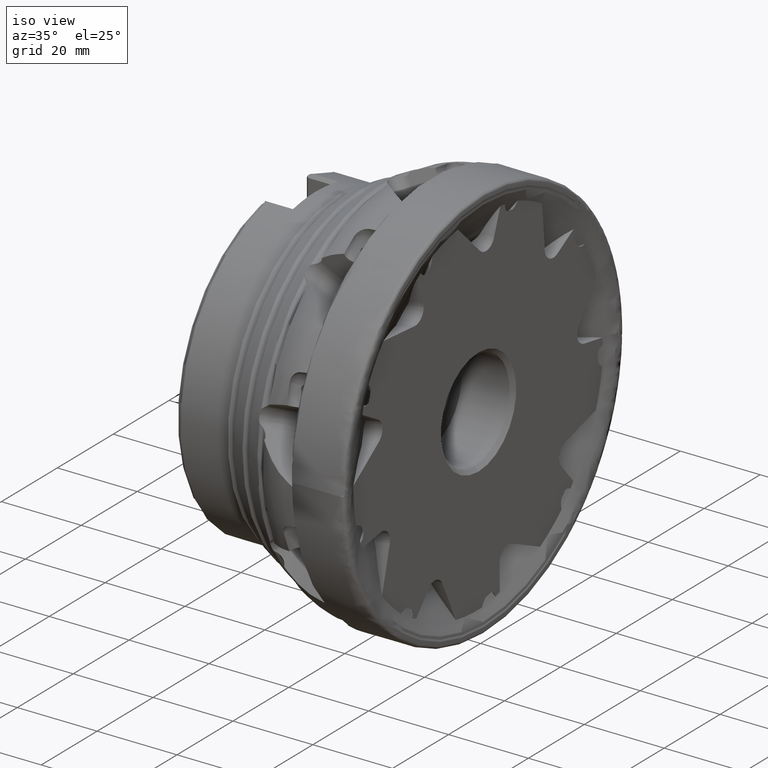
[diagram: clean part render]
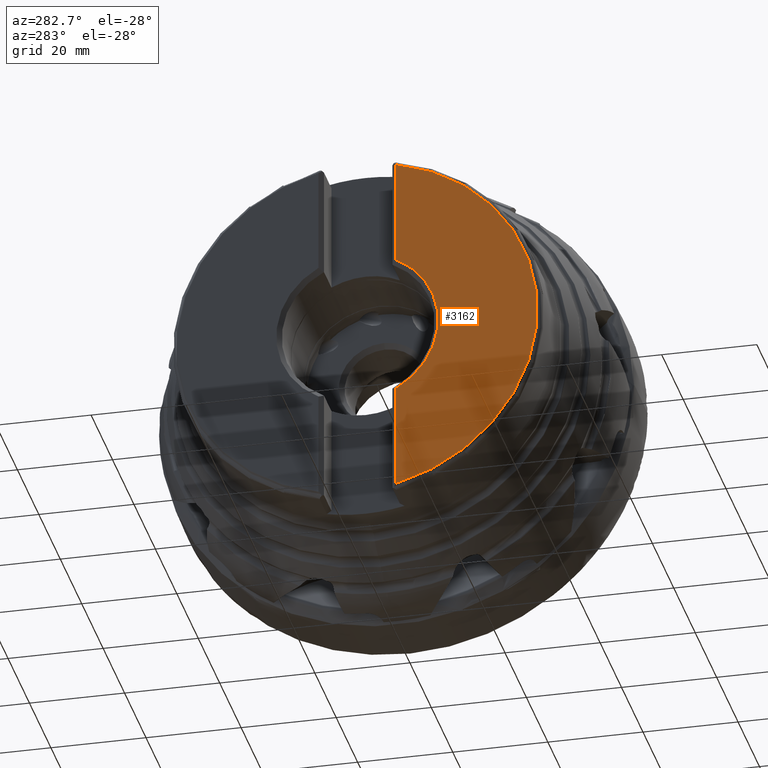
[diagram: tour spotlight — one face highlighted and labeled with its STEP entity id]
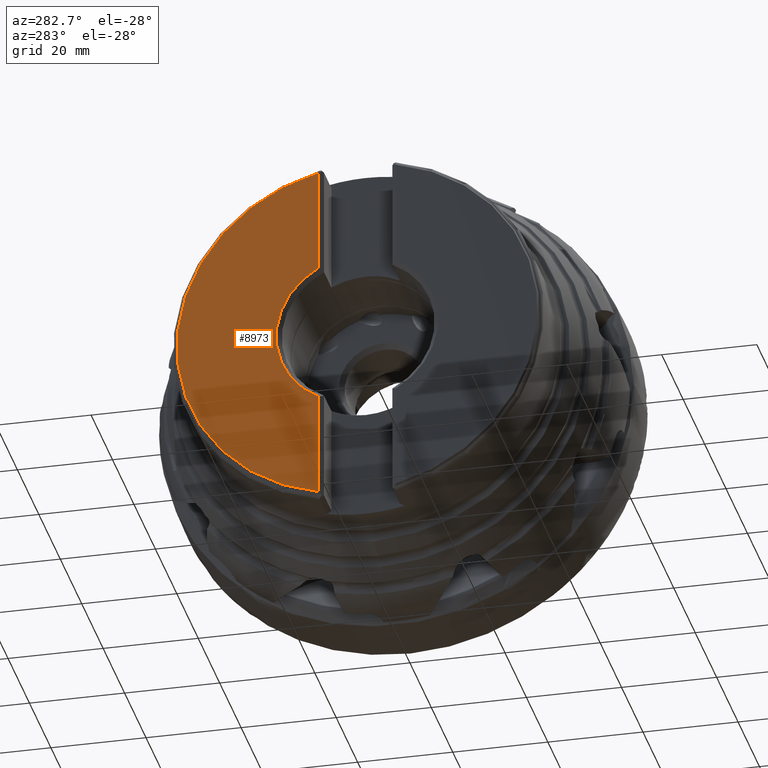
[diagram: tour spotlight — one face highlighted and labeled with its STEP entity id]
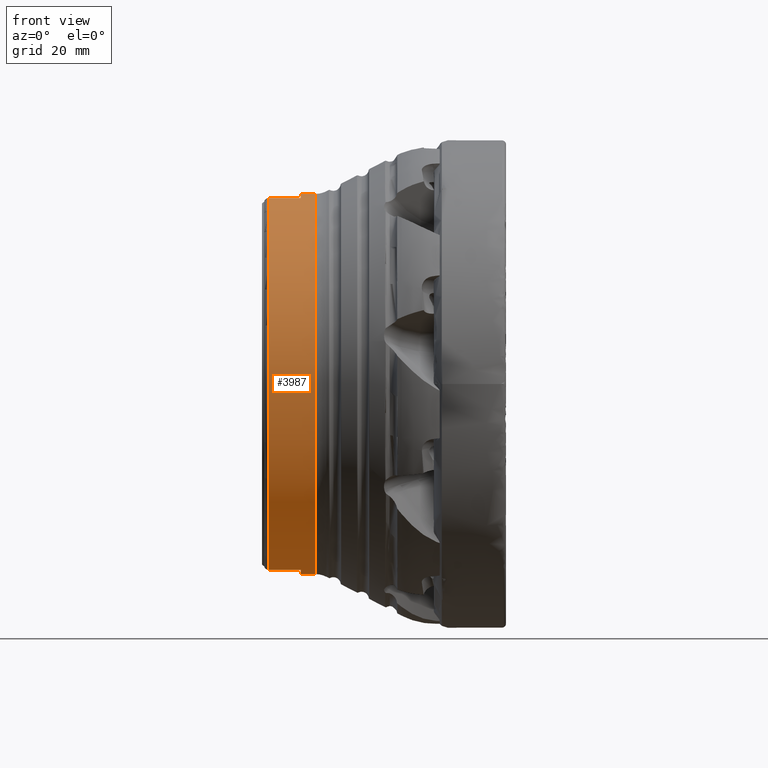
[diagram: tour spotlight — one face highlighted and labeled with its STEP entity id]
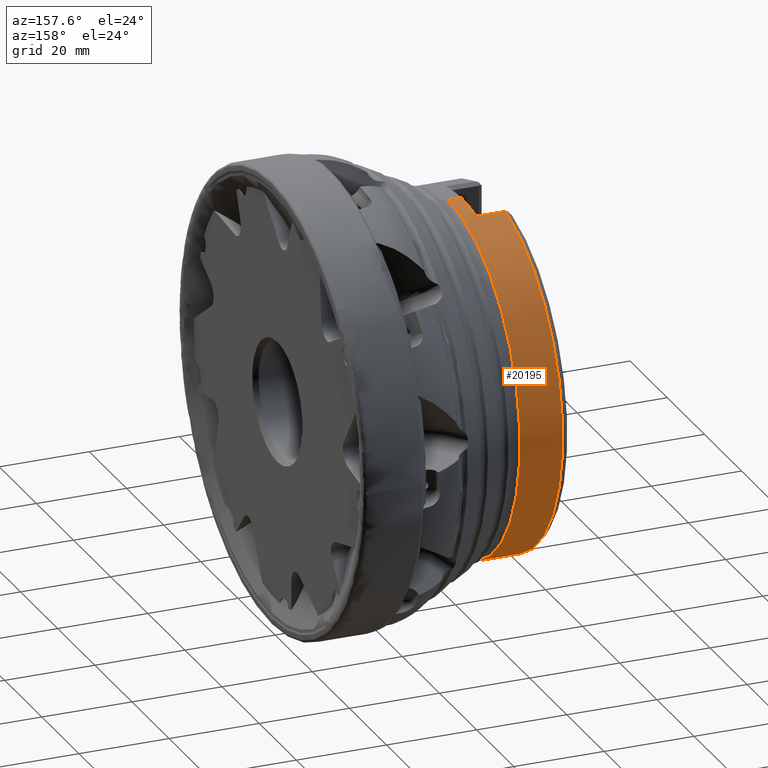
[diagram: tour spotlight — one face highlighted and labeled with its STEP entity id]
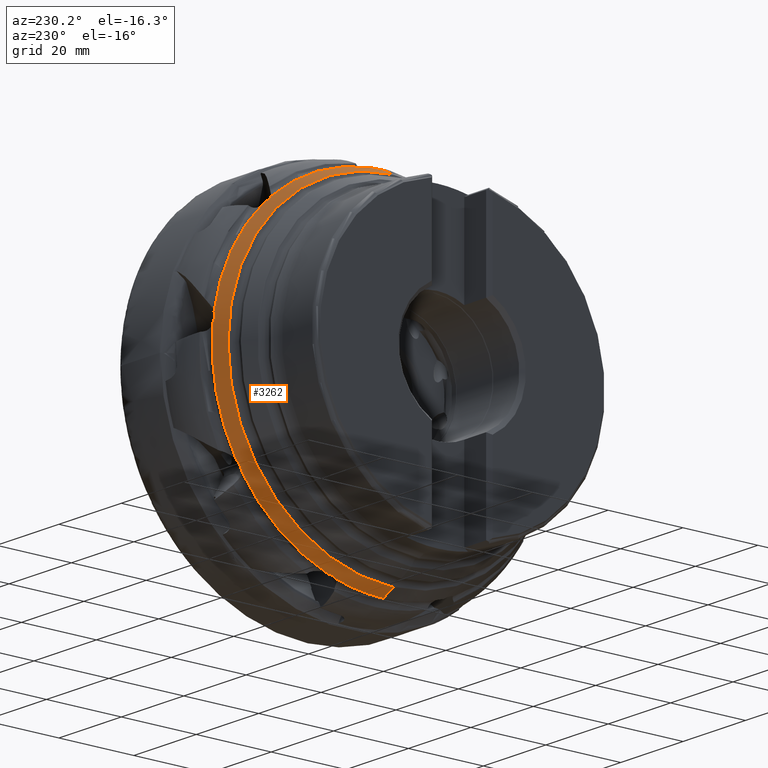
[diagram: tour spotlight — one face highlighted and labeled with its STEP entity id]
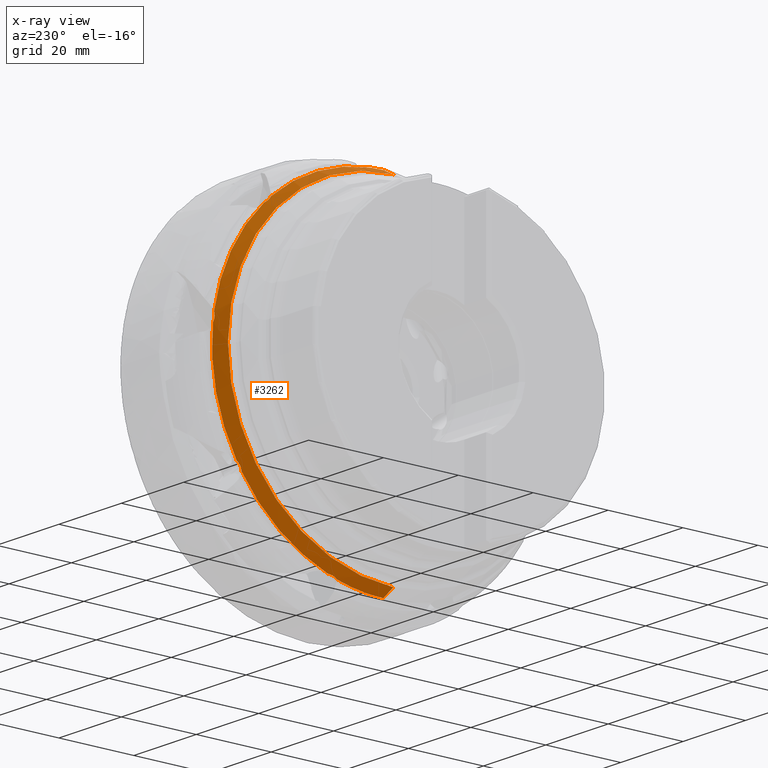
[diagram: x-ray of the same camera — body ghosted, this tour face saturated]
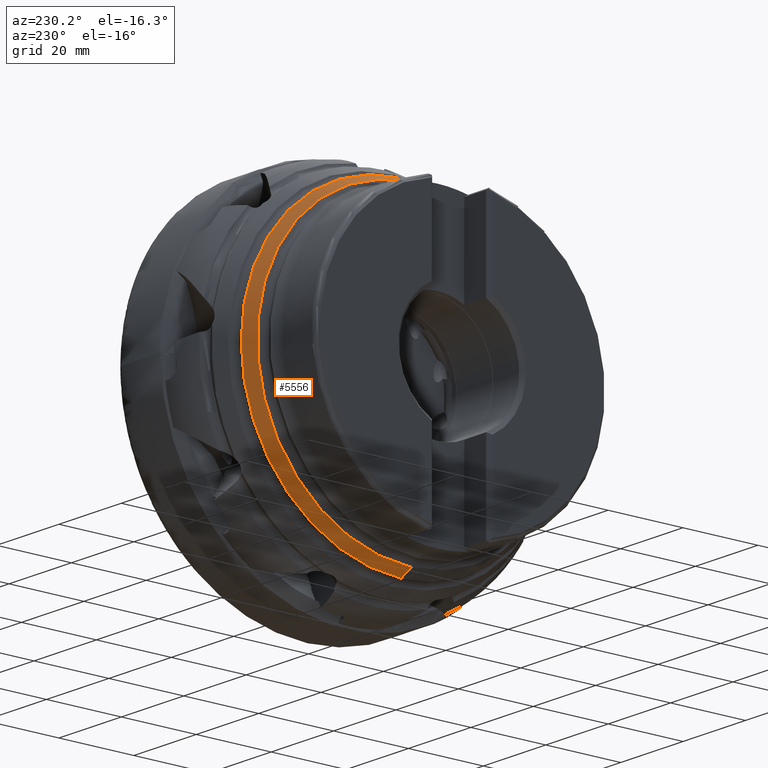
[diagram: tour spotlight — one face highlighted and labeled with its STEP entity id]
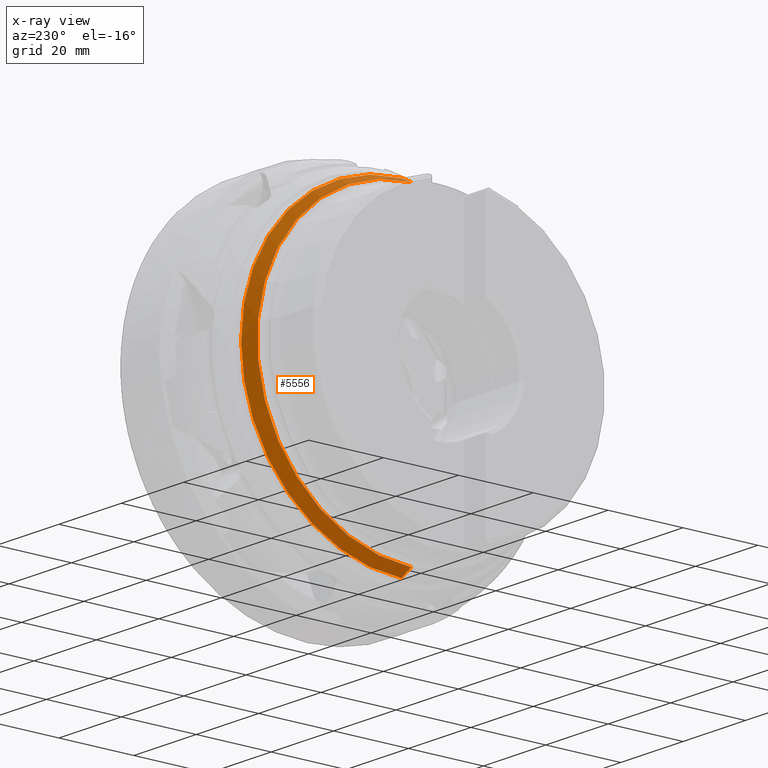
[diagram: x-ray of the same camera — body ghosted, this tour face saturated]
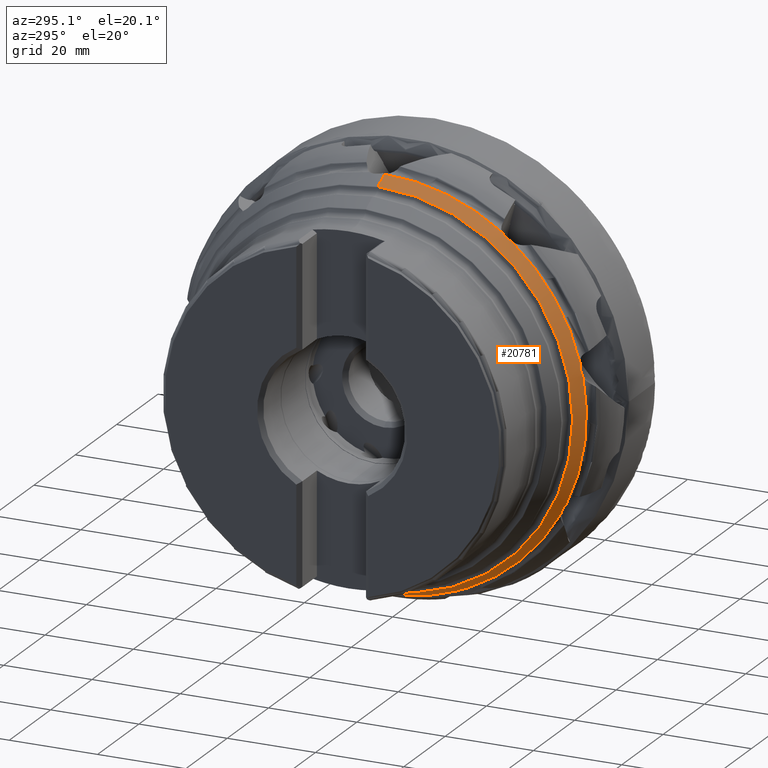
[diagram: tour spotlight — one face highlighted and labeled with its STEP entity id]
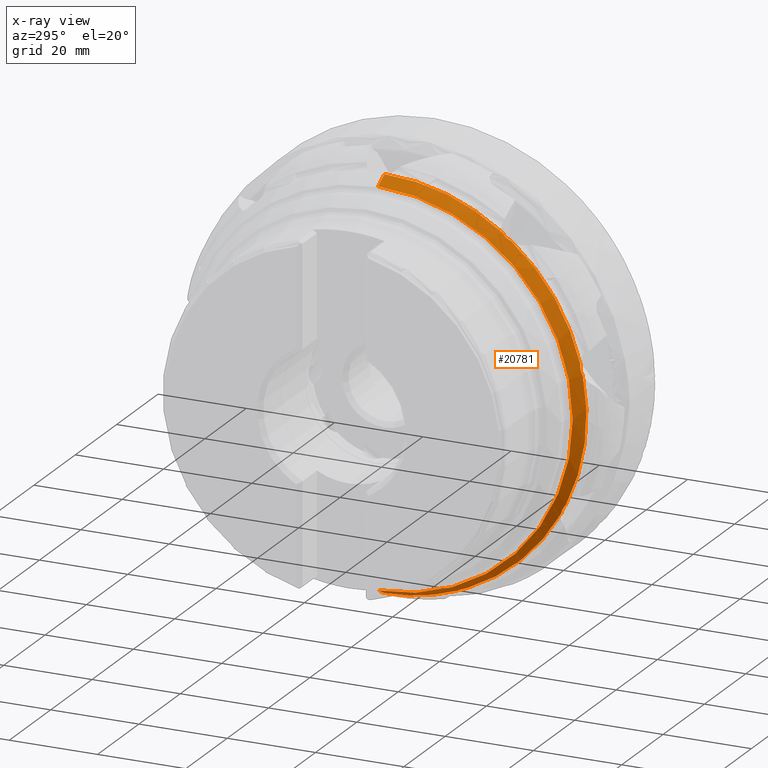
[diagram: x-ray of the same camera — body ghosted, this tour face saturated]
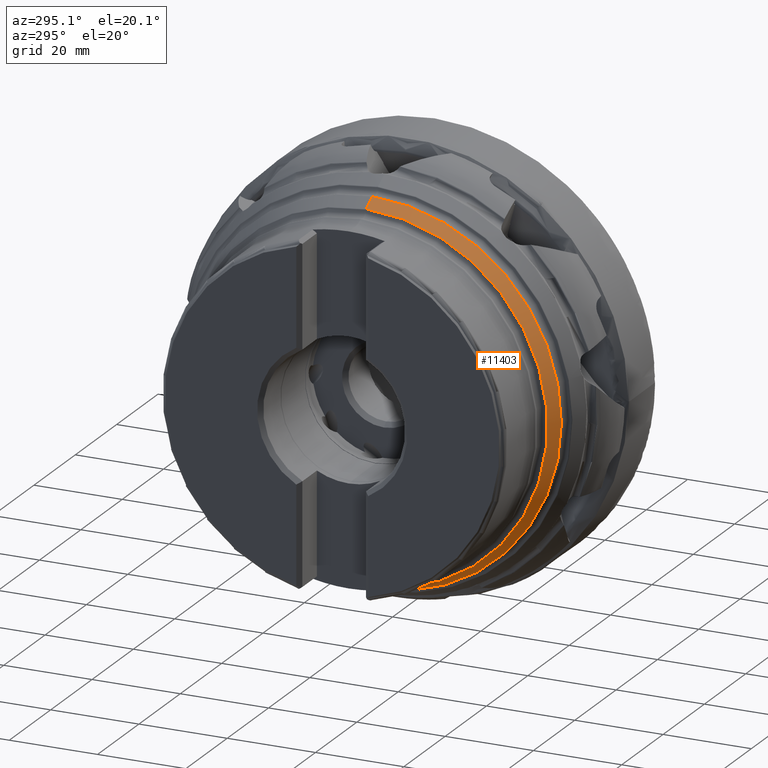
[diagram: tour spotlight — one face highlighted and labeled with its STEP entity id]
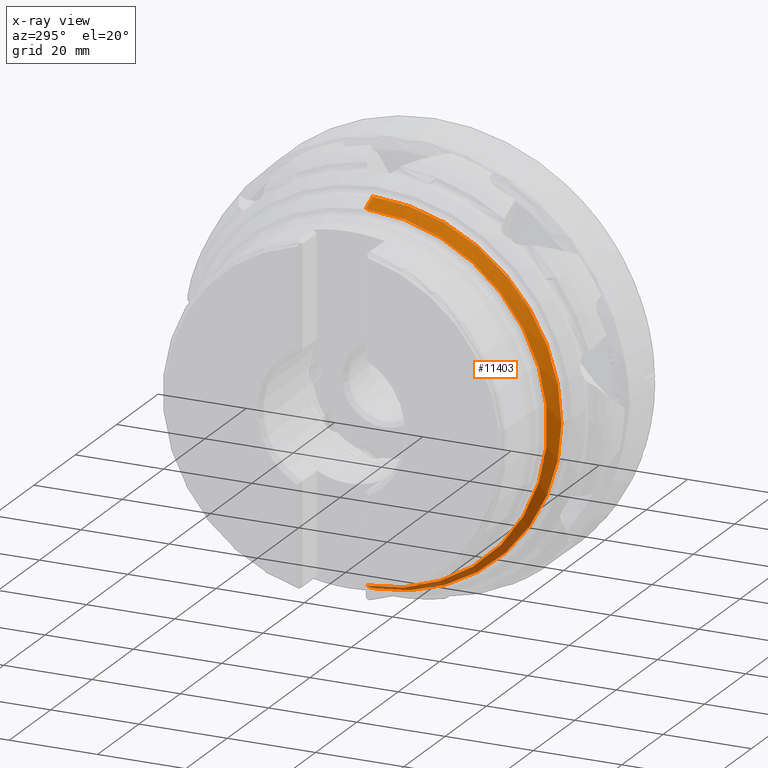
[diagram: x-ray of the same camera — body ghosted, this tour face saturated]
A machine part: a face-by-face anatomy tour. The part has 670 B-rep faces; the first image is the clean iso view, then the 8 largest visible faces are spotlighted one at a time (largest first), each with its STEP entity span.

Face 1 — auxiliary view, entity #3162. In plain terms, the highlighted planar face has unit normal (1, 0, -0).
Definition (entity closure, byte-faithful):
#181 = DIRECTION ( 'NONE',  ( 0.0000000000000000000, 0.0000000000000000000, 1.000000000000000000 ) ) ;
#1027 = CARTESIAN_POINT ( 'NONE',  ( -49.20000000000000300, -8.150000000000035900, 37.03360351109089500 ) ) ;
#2501 = CARTESIAN_POINT ( 'NONE',  ( -49.20000000000000300, -8.150000000000035900, -40.00000000000000000 ) ) ;
#2515 = CIRCLE ( 'NONE', #19547, 17.02500000000000600 ) ;
#2625 = DIRECTION ( 'NONE',  ( 0.0000000000000000000, 0.0000000000000000000, 1.000000000000000000 ) ) ;
#3162 = ADVANCED_FACE ( 'NONE', ( #13242 ), #16270, .F. ) ;
#3812 = CARTESIAN_POINT ( 'NONE',  ( -49.20000000000000300, -8.150000000000035900, 14.94751233483349900 ) ) ;
#4404 = LINE ( 'NONE', #11281, #14346 ) ;
#4524 = EDGE_CURVE ( 'NONE', #20053, #21577, #2515, .T. ) ;
#5474 = DIRECTION ( 'NONE',  ( -1.000000000000000000, 0.0000000000000000000, 0.0000000000000000000 ) ) ;
#5698 = VERTEX_POINT ( 'NONE', #24720 ) ;
#9467 = CIRCLE ( 'NONE', #15361, 37.91978756555322100 ) ;
#9689 = EDGE_CURVE ( 'NONE', #5698, #20053, #4404, .T. ) ;
#10507 = CARTESIAN_POINT ( 'NONE',  ( -49.20000000000000300, -8.150000000000035900, -14.94751233483349800 ) ) ;
#11281 = CARTESIAN_POINT ( 'NONE',  ( -49.20000000000000300, -8.150000000000035900, -40.00000000000000000 ) ) ;
#11770 = CARTESIAN_POINT ( 'NONE',  ( -49.20000000000000300, 0.0000000000000000000, 0.0000000000000000000 ) ) ;
#11882 = ORIENTED_EDGE ( 'NONE', *, *, #13146, .F. ) ;
#13146 = EDGE_CURVE ( 'NONE', #21577, #21400, #24627, .T. ) ;
#13242 = FACE_OUTER_BOUND ( 'NONE', #15896, .T. ) ;
#14157 = EDGE_CURVE ( 'NONE', #5698, #21400, #9467, .T. ) ;
#14346 = VECTOR ( 'NONE', #2625, 1000.000000000000000 ) ;
#14425 = DIRECTION ( 'NONE',  ( -0.0000000000000000000, 0.0000000000000000000, -1.000000000000000000 ) ) ;
#14713 = ORIENTED_EDGE ( 'NONE', *, *, #14157, .T. ) ;
#15361 = AXIS2_PLACEMENT_3D ( 'NONE', #18676, #5474, #20883 ) ;
#15896 = EDGE_LOOP ( 'NONE', ( #18236, #27297, #14713, #11882 ) ) ;
#16270 = PLANE ( 'NONE',  #25195 ) ;
#18236 = ORIENTED_EDGE ( 'NONE', *, *, #4524, .F. ) ;
#18352 = DIRECTION ( 'NONE',  ( 0.0000000000000000000, 0.0000000000000000000, -1.000000000000000000 ) ) ;
#18676 = CARTESIAN_POINT ( 'NONE',  ( -49.20000000000000300, 0.0000000000000000000, 0.0000000000000000000 ) ) ;
#18886 = CARTESIAN_POINT ( 'NONE',  ( -49.20000000000000300, -6.025262251804978400E-015, 0.0000000000000000000 ) ) ;
#19547 = AXIS2_PLACEMENT_3D ( 'NONE', #11770, #22668, #18352 ) ;
#20053 = VERTEX_POINT ( 'NONE', #10507 ) ;
#20498 = VECTOR ( 'NONE', #181, 1000.000000000000000 ) ;
#20883 = DIRECTION ( 'NONE',  ( 0.0000000000000000000, 0.0000000000000000000, -1.000000000000000000 ) ) ;
#21400 = VERTEX_POINT ( 'NONE', #1027 ) ;
#21577 = VERTEX_POINT ( 'NONE', #3812 ) ;
#22668 = DIRECTION ( 'NONE',  ( -1.000000000000000000, 0.0000000000000000000, 0.0000000000000000000 ) ) ;
#24627 = LINE ( 'NONE', #2501, #20498 ) ;
#24720 = CARTESIAN_POINT ( 'NONE',  ( -49.20000000000000300, -8.150000000000035900, -37.03360351109080300 ) ) ;
#25195 = AXIS2_PLACEMENT_3D ( 'NONE', #18886, #27511, #14425 ) ;
#27297 = ORIENTED_EDGE ( 'NONE', *, *, #9689, .F. ) ;
#27511 = DIRECTION ( 'NONE',  ( 1.000000000000000000, 0.0000000000000000000, -0.0000000000000000000 ) ) ;

Face 2 — auxiliary view, entity #8973. In plain terms, the highlighted planar face has unit normal (1, 0, -0).
Definition (entity closure, byte-faithful):
#234 = DIRECTION ( 'NONE',  ( 0.0000000000000000000, 0.0000000000000000000, -1.000000000000000000 ) ) ;
#245 = VERTEX_POINT ( 'NONE', #9554 ) ;
#1015 = LINE ( 'NONE', #2748, #14806 ) ;
#1658 = FACE_OUTER_BOUND ( 'NONE', #6261, .T. ) ;
#1726 = ORIENTED_EDGE ( 'NONE', *, *, #23186, .F. ) ;
#2237 = VERTEX_POINT ( 'NONE', #17358 ) ;
#2516 = DIRECTION ( 'NONE',  ( 0.0000000000000000000, 8.881784197001252300E-016, -1.000000000000000000 ) ) ;
#2748 = CARTESIAN_POINT ( 'NONE',  ( -49.20000000000000300, 8.150000000000025200, -40.00000000000000000 ) ) ;
#2921 = AXIS2_PLACEMENT_3D ( 'NONE', #3432, #16735, #3518 ) ;
#3422 = PLANE ( 'NONE',  #11810 ) ;
#3432 = CARTESIAN_POINT ( 'NONE',  ( -49.20000000000000300, 0.0000000000000000000, 0.0000000000000000000 ) ) ;
#3518 = DIRECTION ( 'NONE',  ( 0.0000000000000000000, 0.0000000000000000000, -1.000000000000000000 ) ) ;
#4662 = ORIENTED_EDGE ( 'NONE', *, *, #24398, .F. ) ;
#5085 = CARTESIAN_POINT ( 'NONE',  ( -49.20000000000000300, 0.0000000000000000000, 0.0000000000000000000 ) ) ;
#6147 = AXIS2_PLACEMENT_3D ( 'NONE', #5085, #11356, #2516 ) ;
#6261 = EDGE_LOOP ( 'NONE', ( #17468, #6469, #1726, #4662 ) ) ;
#6469 = ORIENTED_EDGE ( 'NONE', *, *, #7173, .F. ) ;
#7127 = CARTESIAN_POINT ( 'NONE',  ( -49.20000000000000300, 8.150000000000025200, -40.00000000000000000 ) ) ;
#7173 = EDGE_CURVE ( 'NONE', #2237, #24068, #1015, .T. ) ;
#7350 = CARTESIAN_POINT ( 'NONE',  ( -49.19999999999999600, 8.150000000000019900, -37.03360351109090200 ) ) ;
#7374 = CARTESIAN_POINT ( 'NONE',  ( -49.20000000000000300, -6.025262251804978400E-015, 0.0000000000000000000 ) ) ;
#7785 = VECTOR ( 'NONE', #234, 1000.000000000000000 ) ;
#8812 = CARTESIAN_POINT ( 'NONE',  ( -49.20000000000000300, 8.150000000000025200, 14.94751233483350600 ) ) ;
#8973 = ADVANCED_FACE ( 'NONE', ( #1658 ), #3422, .F. ) ;
#9199 = DIRECTION ( 'NONE',  ( 0.0000000000000000000, 0.0000000000000000000, -1.000000000000000000 ) ) ;
#9554 = CARTESIAN_POINT ( 'NONE',  ( -49.20000000000000300, 8.150000000000025200, 37.03360351109089500 ) ) ;
#11356 = DIRECTION ( 'NONE',  ( -1.000000000000000000, 0.0000000000000000000, 0.0000000000000000000 ) ) ;
#11804 = CIRCLE ( 'NONE', #2921, 37.91978756555322100 ) ;
#11810 = AXIS2_PLACEMENT_3D ( 'NONE', #7374, #19328, #16790 ) ;
#14806 = VECTOR ( 'NONE', #9199, 1000.000000000000000 ) ;
#16735 = DIRECTION ( 'NONE',  ( -1.000000000000000000, 0.0000000000000000000, 0.0000000000000000000 ) ) ;
#16790 = DIRECTION ( 'NONE',  ( -0.0000000000000000000, 0.0000000000000000000, -1.000000000000000000 ) ) ;
#17358 = CARTESIAN_POINT ( 'NONE',  ( -49.20000000000000300, 8.150000000000025200, -14.94751233483350600 ) ) ;
#17468 = ORIENTED_EDGE ( 'NONE', *, *, #26747, .T. ) ;
#19328 = DIRECTION ( 'NONE',  ( 1.000000000000000000, 0.0000000000000000000, -0.0000000000000000000 ) ) ;
#19568 = CIRCLE ( 'NONE', #6147, 17.02500000000000600 ) ;
#23186 = EDGE_CURVE ( 'NONE', #24318, #2237, #19568, .T. ) ;
#23269 = LINE ( 'NONE', #7127, #7785 ) ;
#24068 = VERTEX_POINT ( 'NONE', #7350 ) ;
#24318 = VERTEX_POINT ( 'NONE', #8812 ) ;
#24398 = EDGE_CURVE ( 'NONE', #245, #24318, #23269, .T. ) ;
#26747 = EDGE_CURVE ( 'NONE', #245, #24068, #11804, .T. ) ;

Face 3 — front view, entity #3987. In plain terms, the highlighted cylindrical surface (partial cylindrical patch) has radius 39 mm, axis along (1, -0, -0).
Definition (entity closure, byte-faithful):
#4 = VERTEX_POINT ( 'NONE', #15662 ) ;
#2303 = VERTEX_POINT ( 'NONE', #26353 ) ;
#2590 = CARTESIAN_POINT ( 'NONE',  ( -41.24999999999999300, 4.776122516674677100E-015, 38.99999999999999300 ) ) ;
#2776 = VECTOR ( 'NONE', #6968, 1000.000000000000000 ) ;
#2870 = CYLINDRICAL_SURFACE ( 'NONE', #4765, 38.99999999999999300 ) ;
#3622 = VECTOR ( 'NONE', #8349, 1000.000000000000000 ) ;
#3870 = CARTESIAN_POINT ( 'NONE',  ( -47.75000000000000000, -8.168213455382025100, -38.13502706105392500 ) ) ;
#3987 = ADVANCED_FACE ( 'NONE', ( #6977 ), #2870, .T. ) ;
#4023 = CARTESIAN_POINT ( 'NONE',  ( -41.24999999999999300, -8.168213455382023400, -38.13502706105392500 ) ) ;
#4225 = DIRECTION ( 'NONE',  ( 1.000000000000000000, -0.0000000000000000000, -0.0000000000000000000 ) ) ;
#4479 = CIRCLE ( 'NONE', #20833, 38.99999999999999300 ) ;
#4674 = ORIENTED_EDGE ( 'NONE', *, *, #10592, .F. ) ;
#4691 = DIRECTION ( 'NONE',  ( 0.0000000000000000000, 0.0000000000000000000, -1.000000000000000000 ) ) ;
#4745 = VERTEX_POINT ( 'NONE', #27859 ) ;
#4765 = AXIS2_PLACEMENT_3D ( 'NONE', #7898, #7700, #7799 ) ;
#5207 = ORIENTED_EDGE ( 'NONE', *, *, #9620, .T. ) ;
#5841 = LINE ( 'NONE', #11041, #7510 ) ;
#6775 = CARTESIAN_POINT ( 'NONE',  ( -41.24999999999999300, 0.0000000000000000000, 0.0000000000000000000 ) ) ;
#6968 = DIRECTION ( 'NONE',  ( -1.000000000000000000, 0.0000000000000000000, 0.0000000000000000000 ) ) ;
#6977 = FACE_OUTER_BOUND ( 'NONE', #10197, .T. ) ;
#7510 = VECTOR ( 'NONE', #4225, 1000.000000000000000 ) ;
#7700 = DIRECTION ( 'NONE',  ( 1.000000000000000000, -0.0000000000000000000, -0.0000000000000000000 ) ) ;
#7794 = VECTOR ( 'NONE', #8591, 1000.000000000000000 ) ;
#7799 = DIRECTION ( 'NONE',  ( 0.0000000000000000000, 0.0000000000000000000, -1.000000000000000000 ) ) ;
#7898 = CARTESIAN_POINT ( 'NONE',  ( 0.0000000000000000000, 0.0000000000000000000, 0.0000000000000000000 ) ) ;
#8119 = CIRCLE ( 'NONE', #24413, 39.00000000000000000 ) ;
#8349 = DIRECTION ( 'NONE',  ( 1.000000000000000000, -0.0000000000000000000, -0.0000000000000000000 ) ) ;
#8591 = DIRECTION ( 'NONE',  ( 1.000000000000000000, -0.0000000000000000000, -0.0000000000000000000 ) ) ;
#8703 = VERTEX_POINT ( 'NONE', #26619 ) ;
#8792 = VERTEX_POINT ( 'NONE', #26983 ) ;
#9123 = CARTESIAN_POINT ( 'NONE',  ( -6.594688383663064700E-031, -8.168213455382019800, 38.13502706105392500 ) ) ;
#9214 = CIRCLE ( 'NONE', #11294, 38.99999999999999300 ) ;
#9262 = EDGE_CURVE ( 'NONE', #4, #16134, #9214, .T. ) ;
#9620 = EDGE_CURVE ( 'NONE', #4, #2303, #11926, .T. ) ;
#9889 = DIRECTION ( 'NONE',  ( 1.000000000000000000, -0.0000000000000000000, -0.0000000000000000000 ) ) ;
#9999 = LINE ( 'NONE', #9123, #2776 ) ;
#10197 = EDGE_LOOP ( 'NONE', ( #14662, #27429, #19363, #11171, #16658, #16179, #5207, #4674 ) ) ;
#10592 = EDGE_CURVE ( 'NONE', #8703, #2303, #8119, .T. ) ;
#11041 = CARTESIAN_POINT ( 'NONE',  ( -6.594688383663064700E-031, -8.168213455382016300, -38.13502706105392500 ) ) ;
#11171 = ORIENTED_EDGE ( 'NONE', *, *, #16013, .T. ) ;
#11294 = AXIS2_PLACEMENT_3D ( 'NONE', #6775, #17805, #22182 ) ;
#11311 = AXIS2_PLACEMENT_3D ( 'NONE', #18877, #9889, #12099 ) ;
#11473 = EDGE_CURVE ( 'NONE', #21988, #16134, #5841, .T. ) ;
#11926 = LINE ( 'NONE', #19882, #7794 ) ;
#12099 = DIRECTION ( 'NONE',  ( 0.0000000000000000000, 0.0000000000000000000, -1.000000000000000000 ) ) ;
#12975 = DIRECTION ( 'NONE',  ( 0.0000000000000000000, 7.105427357601001900E-015, -1.000000000000000000 ) ) ;
#14351 = EDGE_CURVE ( 'NONE', #23546, #8703, #19506, .T. ) ;
#14588 = CIRCLE ( 'NONE', #11311, 38.99999999999999300 ) ;
#14662 = ORIENTED_EDGE ( 'NONE', *, *, #14351, .F. ) ;
#15497 = CARTESIAN_POINT ( 'NONE',  ( -38.25000000000000700, 0.0000000000000000000, 0.0000000000000000000 ) ) ;
#15662 = CARTESIAN_POINT ( 'NONE',  ( -41.24999999999999300, 0.0000000000000000000, -38.99999999999999300 ) ) ;
#15775 = DIRECTION ( 'NONE',  ( 1.000000000000000000, -0.0000000000000000000, -0.0000000000000000000 ) ) ;
#16013 = EDGE_CURVE ( 'NONE', #4745, #21988, #14588, .T. ) ;
#16134 = VERTEX_POINT ( 'NONE', #4023 ) ;
#16179 = ORIENTED_EDGE ( 'NONE', *, *, #9262, .F. ) ;
#16658 = ORIENTED_EDGE ( 'NONE', *, *, #11473, .T. ) ;
#17805 = DIRECTION ( 'NONE',  ( -1.000000000000000000, -0.0000000000000000000, -0.0000000000000000000 ) ) ;
#18877 = CARTESIAN_POINT ( 'NONE',  ( -47.75000000000000000, 0.0000000000000000000, 0.0000000000000000000 ) ) ;
#18896 = EDGE_CURVE ( 'NONE', #8792, #4745, #9999, .T. ) ;
#19363 = ORIENTED_EDGE ( 'NONE', *, *, #18896, .T. ) ;
#19506 = LINE ( 'NONE', #21928, #3622 ) ;
#19580 = EDGE_CURVE ( 'NONE', #8792, #23546, #4479, .T. ) ;
#19882 = CARTESIAN_POINT ( 'NONE',  ( 0.0000000000000000000, 0.0000000000000000000, -38.99999999999999300 ) ) ;
#20833 = AXIS2_PLACEMENT_3D ( 'NONE', #22015, #21640, #12975 ) ;
#21640 = DIRECTION ( 'NONE',  ( -1.000000000000000000, -0.0000000000000000000, -0.0000000000000000000 ) ) ;
#21928 = CARTESIAN_POINT ( 'NONE',  ( 0.0000000000000000000, 4.776122516674677100E-015, 38.99999999999999300 ) ) ;
#21988 = VERTEX_POINT ( 'NONE', #3870 ) ;
#22015 = CARTESIAN_POINT ( 'NONE',  ( -41.24999999999999300, 0.0000000000000000000, 0.0000000000000000000 ) ) ;
#22182 = DIRECTION ( 'NONE',  ( 0.0000000000000000000, 0.0000000000000000000, -1.000000000000000000 ) ) ;
#23546 = VERTEX_POINT ( 'NONE', #2590 ) ;
#24413 = AXIS2_PLACEMENT_3D ( 'NONE', #15497, #15775, #4691 ) ;
#26353 = CARTESIAN_POINT ( 'NONE',  ( -38.25000000000000700, 0.0000000000000000000, -39.00000000000000000 ) ) ;
#26619 = CARTESIAN_POINT ( 'NONE',  ( -38.25000000000000700, 4.810361849021054400E-015, 39.00000000000000000 ) ) ;
#26983 = CARTESIAN_POINT ( 'NONE',  ( -41.24999999999999300, -8.168213455382026900, 38.13502706105392500 ) ) ;
#27429 = ORIENTED_EDGE ( 'NONE', *, *, #19580, .F. ) ;
#27859 = CARTESIAN_POINT ( 'NONE',  ( -47.75000000000000000, -8.168213455382023400, 38.13502706105392500 ) ) ;

Face 4 — auxiliary view, entity #20195. In plain terms, the highlighted cylindrical surface (partial cylindrical patch) has radius 39 mm, axis along (1, -0, -0).
Definition (entity closure, byte-faithful):
#4 = VERTEX_POINT ( 'NONE', #15662 ) ;
#64 = DIRECTION ( 'NONE',  ( -1.000000000000000000, -0.0000000000000000000, -0.0000000000000000000 ) ) ;
#122 = CARTESIAN_POINT ( 'NONE',  ( 0.0000000000000000000, 0.0000000000000000000, 0.0000000000000000000 ) ) ;
#871 = CARTESIAN_POINT ( 'NONE',  ( -47.75000000000000000, 8.168213455382021600, 38.13502706105392500 ) ) ;
#906 = ORIENTED_EDGE ( 'NONE', *, *, #24854, .T. ) ;
#1260 = CIRCLE ( 'NONE', #21838, 38.99999999999999300 ) ;
#1873 = AXIS2_PLACEMENT_3D ( 'NONE', #122, #13132, #17397 ) ;
#2303 = VERTEX_POINT ( 'NONE', #26353 ) ;
#2488 = ORIENTED_EDGE ( 'NONE', *, *, #27447, .F. ) ;
#2590 = CARTESIAN_POINT ( 'NONE',  ( -41.24999999999999300, 4.776122516674677100E-015, 38.99999999999999300 ) ) ;
#2619 = ORIENTED_EDGE ( 'NONE', *, *, #4829, .T. ) ;
#3622 = VECTOR ( 'NONE', #8349, 1000.000000000000000 ) ;
#4335 = LINE ( 'NONE', #20270, #21192 ) ;
#4829 = EDGE_CURVE ( 'NONE', #27456, #6307, #21097, .T. ) ;
#6083 = DIRECTION ( 'NONE',  ( 1.000000000000000000, -0.0000000000000000000, -0.0000000000000000000 ) ) ;
#6307 = VERTEX_POINT ( 'NONE', #11960 ) ;
#6498 = DIRECTION ( 'NONE',  ( 1.000000000000000000, -0.0000000000000000000, -0.0000000000000000000 ) ) ;
#7034 = DIRECTION ( 'NONE',  ( -1.000000000000000000, 0.0000000000000000000, 0.0000000000000000000 ) ) ;
#7176 = CARTESIAN_POINT ( 'NONE',  ( -41.24999999999999300, 8.168213455382023400, -38.13502706105392500 ) ) ;
#7794 = VECTOR ( 'NONE', #8591, 1000.000000000000000 ) ;
#8349 = DIRECTION ( 'NONE',  ( 1.000000000000000000, -0.0000000000000000000, -0.0000000000000000000 ) ) ;
#8511 = DIRECTION ( 'NONE',  ( 0.0000000000000000000, 0.0000000000000000000, -1.000000000000000000 ) ) ;
#8534 = CARTESIAN_POINT ( 'NONE',  ( -6.594688383663064700E-031, 8.168213455382026900, 38.13502706105392500 ) ) ;
#8591 = DIRECTION ( 'NONE',  ( 1.000000000000000000, -0.0000000000000000000, -0.0000000000000000000 ) ) ;
#8703 = VERTEX_POINT ( 'NONE', #26619 ) ;
#9620 = EDGE_CURVE ( 'NONE', #4, #2303, #11926, .T. ) ;
#9622 = DIRECTION ( 'NONE',  ( -1.000000000000000000, -0.0000000000000000000, -0.0000000000000000000 ) ) ;
#9684 = CIRCLE ( 'NONE', #20837, 39.00000000000000000 ) ;
#9901 = VERTEX_POINT ( 'NONE', #16579 ) ;
#10192 = DIRECTION ( 'NONE',  ( 1.000000000000000000, -0.0000000000000000000, -0.0000000000000000000 ) ) ;
#10646 = EDGE_CURVE ( 'NONE', #11444, #4, #1260, .T. ) ;
#11125 = DIRECTION ( 'NONE',  ( 0.0000000000000000000, 7.993605777301127100E-015, -1.000000000000000000 ) ) ;
#11444 = VERTEX_POINT ( 'NONE', #7176 ) ;
#11823 = DIRECTION ( 'NONE',  ( 0.0000000000000000000, 0.0000000000000000000, -1.000000000000000000 ) ) ;
#11926 = LINE ( 'NONE', #19882, #7794 ) ;
#11960 = CARTESIAN_POINT ( 'NONE',  ( -41.24999999999999300, 8.168213455382023400, 38.13502706105392500 ) ) ;
#13132 = DIRECTION ( 'NONE',  ( 1.000000000000000000, -0.0000000000000000000, -0.0000000000000000000 ) ) ;
#13604 = EDGE_CURVE ( 'NONE', #11444, #9901, #4335, .T. ) ;
#13972 = EDGE_LOOP ( 'NONE', ( #2488, #25037, #18613, #18515, #24328, #25643, #906, #2619 ) ) ;
#14351 = EDGE_CURVE ( 'NONE', #23546, #8703, #19506, .T. ) ;
#14431 = CARTESIAN_POINT ( 'NONE',  ( -47.75000000000000000, 0.0000000000000000000, 0.0000000000000000000 ) ) ;
#14725 = DIRECTION ( 'NONE',  ( 0.0000000000000000000, 0.0000000000000000000, -1.000000000000000000 ) ) ;
#15662 = CARTESIAN_POINT ( 'NONE',  ( -41.24999999999999300, 0.0000000000000000000, -38.99999999999999300 ) ) ;
#16426 = AXIS2_PLACEMENT_3D ( 'NONE', #20612, #9622, #11823 ) ;
#16579 = CARTESIAN_POINT ( 'NONE',  ( -47.75000000000000000, 8.168213455382026900, -38.13502706105393300 ) ) ;
#17397 = DIRECTION ( 'NONE',  ( 0.0000000000000000000, 0.0000000000000000000, -1.000000000000000000 ) ) ;
#18515 = ORIENTED_EDGE ( 'NONE', *, *, #9620, .F. ) ;
#18613 = ORIENTED_EDGE ( 'NONE', *, *, #28574, .F. ) ;
#19506 = LINE ( 'NONE', #21928, #3622 ) ;
#19608 = CARTESIAN_POINT ( 'NONE',  ( -38.25000000000000700, 0.0000000000000000000, 0.0000000000000000000 ) ) ;
#19882 = CARTESIAN_POINT ( 'NONE',  ( 0.0000000000000000000, 0.0000000000000000000, -38.99999999999999300 ) ) ;
#19978 = FACE_OUTER_BOUND ( 'NONE', #13972, .T. ) ;
#20195 = ADVANCED_FACE ( 'NONE', ( #19978 ), #22342, .T. ) ;
#20270 = CARTESIAN_POINT ( 'NONE',  ( -6.594688383663064700E-031, 8.168213455382026900, -38.13502706105392500 ) ) ;
#20612 = CARTESIAN_POINT ( 'NONE',  ( -41.24999999999999300, 0.0000000000000000000, 0.0000000000000000000 ) ) ;
#20837 = AXIS2_PLACEMENT_3D ( 'NONE', #19608, #6083, #8511 ) ;
#21097 = LINE ( 'NONE', #8534, #26925 ) ;
#21192 = VECTOR ( 'NONE', #7034, 1000.000000000000000 ) ;
#21562 = CIRCLE ( 'NONE', #28338, 38.99999999999999300 ) ;
#21838 = AXIS2_PLACEMENT_3D ( 'NONE', #24226, #64, #11125 ) ;
#21928 = CARTESIAN_POINT ( 'NONE',  ( 0.0000000000000000000, 4.776122516674677100E-015, 38.99999999999999300 ) ) ;
#22342 = CYLINDRICAL_SURFACE ( 'NONE', #1873, 38.99999999999999300 ) ;
#23546 = VERTEX_POINT ( 'NONE', #2590 ) ;
#24226 = CARTESIAN_POINT ( 'NONE',  ( -41.24999999999999300, 0.0000000000000000000, 0.0000000000000000000 ) ) ;
#24328 = ORIENTED_EDGE ( 'NONE', *, *, #10646, .F. ) ;
#24854 = EDGE_CURVE ( 'NONE', #9901, #27456, #21562, .T. ) ;
#25037 = ORIENTED_EDGE ( 'NONE', *, *, #14351, .T. ) ;
#25643 = ORIENTED_EDGE ( 'NONE', *, *, #13604, .T. ) ;
#26353 = CARTESIAN_POINT ( 'NONE',  ( -38.25000000000000700, 0.0000000000000000000, -39.00000000000000000 ) ) ;
#26619 = CARTESIAN_POINT ( 'NONE',  ( -38.25000000000000700, 4.810361849021054400E-015, 39.00000000000000000 ) ) ;
#26925 = VECTOR ( 'NONE', #6498, 1000.000000000000000 ) ;
#27447 = EDGE_CURVE ( 'NONE', #23546, #6307, #27637, .T. ) ;
#27456 = VERTEX_POINT ( 'NONE', #871 ) ;
#27637 = CIRCLE ( 'NONE', #16426, 38.99999999999999300 ) ;
#28338 = AXIS2_PLACEMENT_3D ( 'NONE', #14431, #10192, #14725 ) ;
#28574 = EDGE_CURVE ( 'NONE', #2303, #8703, #9684, .T. ) ;

Face 5 — auxiliary view, entity #3262. An x-ray twin of the same camera follows (body ghosted, this face saturated) — the face is partly hidden behind the body. In plain terms, the highlighted conical surface has half-angle 27.356 deg.
Definition (entity closure, byte-faithful):
#662 = B_SPLINE_CURVE_WITH_KNOTS ( 'NONE', 3,
 ( #6712, #6799, #9223, #13549 ),
 .UNSPECIFIED., .F., .F.,
 ( 4, 4 ),
 ( 0.002158452735760604700, 0.002504798009778374200 ),
 .UNSPECIFIED. ) ;
#676 = EDGE_CURVE ( 'NONE', #2867, #14866, #11762, .T. ) ;
#766 = CARTESIAN_POINT ( 'NONE',  ( -24.06458551626211300, 30.26424438230708700, 34.25572970002619400 ) ) ;
#770 = EDGE_CURVE ( 'NONE', #4938, #26469, #662, .T. ) ;
#863 = ORIENTED_EDGE ( 'NONE', *, *, #3824, .T. ) ;
#983 = DIRECTION ( 'NONE',  ( -1.000000000000000000, -0.0000000000000000000, -0.0000000000000000000 ) ) ;
#1028 = VERTEX_POINT ( 'NONE', #5346 ) ;
#1662 = CARTESIAN_POINT ( 'NONE',  ( -20.57421417023958600, 5.818982029736033900E-015, 47.51559415978088900 ) ) ;
#1712 = ORIENTED_EDGE ( 'NONE', *, *, #13278, .T. ) ;
#2137 = DIRECTION ( 'NONE',  ( 0.8881658536315447700, 5.627534096129916900E-017, 0.4595230314608281200 ) ) ;
#2178 = CARTESIAN_POINT ( 'NONE',  ( -23.95387321431863400, 3.284995708731473400, 45.64896679790760500 ) ) ;
#2188 = B_SPLINE_CURVE_WITH_KNOTS ( 'NONE', 3,
 ( #8075, #8175, #14834, #2429 ),
 .UNSPECIFIED., .F., .F.,
 ( 4, 4 ),
 ( 0.002538143510370558400, 0.002887717063395970500 ),
 .UNSPECIFIED. ) ;
#2364 = EDGE_CURVE ( 'NONE', #27475, #3339, #26291, .T. ) ;
#2407 = CARTESIAN_POINT ( 'NONE',  ( -24.16477085218098300, 2.597800497226187200, 45.58538387922445200 ) ) ;
#2429 = CARTESIAN_POINT ( 'NONE',  ( -23.95387321430908800, 39.20946806849534000, -23.60586749748779000 ) ) ;
#2456 = CARTESIAN_POINT ( 'NONE',  ( -24.06458551626211300, 45.20291484620912600, 6.787930076218275500 ) ) ;
#2486 = CARTESIAN_POINT ( 'NONE',  ( -24.08857332285106200, 2.948214836131325200, 45.60333032461966200 ) ) ;
#2636 = CIRCLE ( 'NONE', #15638, 44.12377501264051500 ) ;
#2672 = CARTESIAN_POINT ( 'NONE',  ( -24.06458551626211300, 14.53420995424202300, -43.33746931143157600 ) ) ;
#2758 = CARTESIAN_POINT ( 'NONE',  ( -24.20247296601231900, 45.23349333421919000, 6.076676921743086300 ) ) ;
#2867 = VERTEX_POINT ( 'NONE', #24750 ) ;
#2994 = B_SPLINE_CURVE_WITH_KNOTS ( 'NONE', 3,
 ( #13370, #15591, #24598, #2407, #2486, #14090 ),
 .UNSPECIFIED., .F., .F.,
 ( 4, 2, 4 ),
 ( 1.517883041479706200E-018, 0.001080990199277665800, 0.002161980398555330200 ),
 .UNSPECIFIED. ) ;
#3262 = ADVANCED_FACE ( 'NONE', ( #8042 ), #3582, .T. ) ;
#3310 = DIRECTION ( 'NONE',  ( -1.000000000000000000, -0.0000000000000000000, -0.0000000000000000000 ) ) ;
#3339 = VERTEX_POINT ( 'NONE', #28182 ) ;
#3456 = ORIENTED_EDGE ( 'NONE', *, *, #7935, .F. ) ;
#3479 = ORIENTED_EDGE ( 'NONE', *, *, #3515, .T. ) ;
#3515 = EDGE_CURVE ( 'NONE', #1028, #10549, #19104, .T. ) ;
#3582 = CONICAL_SURFACE ( 'NONE', #19319, 47.51559415978088900, 0.4774580974345093400 ) ;
#3689 = EDGE_CURVE ( 'NONE', #24376, #20384, #11973, .T. ) ;
#3824 = EDGE_CURVE ( 'NONE', #17511, #7630, #26956, .T. ) ;
#4189 = EDGE_LOOP ( 'NONE', ( #8452, #13831, #19443, #4818, #16091, #21088, #9681, #10550, #6819, #11481, #18821, #863, #3456, #16718, #1712, #14963, #13161, #3479, #12749 ) ) ;
#4367 = DIRECTION ( 'NONE',  ( 1.000000000000000000, 0.0000000000000000000, 0.0000000000000000000 ) ) ;
#4449 = EDGE_CURVE ( 'NONE', #11617, #22448, #2994, .T. ) ;
#4520 = CARTESIAN_POINT ( 'NONE',  ( -23.95387321431863400, 0.0000000000000000000, -45.76701177183031900 ) ) ;
#4580 = EDGE_CURVE ( 'NONE', #24376, #17511, #26958, .T. ) ;
#4635 = VECTOR ( 'NONE', #17469, 1000.000000000000100 ) ;
#4818 = ORIENTED_EDGE ( 'NONE', *, *, #9019, .F. ) ;
#4845 = AXIS2_PLACEMENT_3D ( 'NONE', #26326, #19429, #17616 ) ;
#4938 = VERTEX_POINT ( 'NONE', #16415 ) ;
#4990 = CIRCLE ( 'NONE', #21401, 45.76701177183031900 ) ;
#5025 = EDGE_CURVE ( 'NONE', #9754, #20384, #14173, .T. ) ;
#5238 = CARTESIAN_POINT ( 'NONE',  ( -24.16229435142843900, 45.20467235215296900, 6.435803728647926800 ) ) ;
#5346 = CARTESIAN_POINT ( 'NONE',  ( -23.95387321431863400, 12.52597994008043100, -44.01953194961933500 ) ) ;
#5497 = EDGE_CURVE ( 'NONE', #27475, #9754, #26851, .T. ) ;
#5519 = CARTESIAN_POINT ( 'NONE',  ( -27.12992028709512800, 0.0000000000000000000, -44.12377501264051500 ) ) ;
#5535 = DIRECTION ( 'NONE',  ( -1.000000000000000000, -0.0000000000000000000, -0.0000000000000000000 ) ) ;
#5651 = CARTESIAN_POINT ( 'NONE',  ( -23.95387321431863400, 45.52588993804120300, 4.691770654264123800 ) ) ;
#5668 = CARTESIAN_POINT ( 'NONE',  ( -24.20247296601230500, 30.74485357817329900, 33.73053364660545800 ) ) ;
#5761 = CARTESIAN_POINT ( 'NONE',  ( -24.08857332285105800, 31.57171928544732300, 33.03910181553478500 ) ) ;
#6330 = CARTESIAN_POINT ( 'NONE',  ( -23.95387321431863400, 31.85904296103070300, 32.85758281021376300 ) ) ;
#6475 = CARTESIAN_POINT ( 'NONE',  ( -24.06458551626211300, 45.20291484620912600, 6.787930076218275500 ) ) ;
#6712 = CARTESIAN_POINT ( 'NONE',  ( -24.06458551626211300, 14.53420995424202300, -43.33746931143157600 ) ) ;
#6799 = CARTESIAN_POINT ( 'NONE',  ( -24.03335074466807300, 14.64496718838902300, -43.31736933037053200 ) ) ;
#6819 = ORIENTED_EDGE ( 'NONE', *, *, #5025, .T. ) ;
#7238 = B_SPLINE_CURVE_WITH_KNOTS ( 'NONE', 3,
 ( #7795, #14244, #18807, #27528 ),
 .UNSPECIFIED., .F., .F.,
 ( 4, 4 ),
 ( 0.0008008163443163504800, 0.001148437800129682500 ),
 .UNSPECIFIED. ) ;
#7630 = VERTEX_POINT ( 'NONE', #8594 ) ;
#7795 = CARTESIAN_POINT ( 'NONE',  ( -24.06458551626210600, 1.164597622312998800, 45.69489268716324700 ) ) ;
#7843 = CARTESIAN_POINT ( 'NONE',  ( -23.95387321431863400, 5.604842447291123600E-015, 45.76701177183031900 ) ) ;
#7869 = AXIS2_PLACEMENT_3D ( 'NONE', #26379, #15539, #13405 ) ;
#7935 = EDGE_CURVE ( 'NONE', #2867, #7630, #2188, .T. ) ;
#8042 = FACE_OUTER_BOUND ( 'NONE', #4189, .T. ) ;
#8075 = CARTESIAN_POINT ( 'NONE',  ( -24.06458551626211000, 38.99063907913053800, -23.85601746969181700 ) ) ;
#8175 = CARTESIAN_POINT ( 'NONE',  ( -24.03341911184869800, 39.06240659360326400, -23.76961614458820200 ) ) ;
#8452 = ORIENTED_EDGE ( 'NONE', *, *, #24723, .T. ) ;
#8594 = CARTESIAN_POINT ( 'NONE',  ( -23.95387321430908800, 39.20946806849534000, -23.60586749748779000 ) ) ;
#8953 = CARTESIAN_POINT ( 'NONE',  ( -23.95387321430908800, 30.05589400548867100, 34.51467227215312800 ) ) ;
#9019 = EDGE_CURVE ( 'NONE', #11617, #20156, #7238, .T. ) ;
#9028 = CARTESIAN_POINT ( 'NONE',  ( -24.20247296601231900, 13.83907223207922300, -43.49109105763377400 ) ) ;
#9087 = EDGE_CURVE ( 'NONE', #26727, #20156, #17180, .T. ) ;
#9223 = CARTESIAN_POINT ( 'NONE',  ( -23.99644496696473800, 14.75443947780820500, -43.30036554806527200 ) ) ;
#9681 = ORIENTED_EDGE ( 'NONE', *, *, #2364, .F. ) ;
#9754 = VERTEX_POINT ( 'NONE', #16104 ) ;
#9824 = CARTESIAN_POINT ( 'NONE',  ( -23.95387321431863400, 0.0000000000000000000, 0.0000000000000000000 ) ) ;
#10228 = CARTESIAN_POINT ( 'NONE',  ( -23.95387321431863400, 0.0000000000000000000, 0.0000000000000000000 ) ) ;
#10457 = CIRCLE ( 'NONE', #23446, 45.76701177183031900 ) ;
#10549 = VERTEX_POINT ( 'NONE', #4520 ) ;
#10550 = ORIENTED_EDGE ( 'NONE', *, *, #5497, .T. ) ;
#10689 = CARTESIAN_POINT ( 'NONE',  ( -20.57421417023958600, 0.0000000000000000000, -47.51559415978088900 ) ) ;
#10875 = VERTEX_POINT ( 'NONE', #5519 ) ;
#10926 = CARTESIAN_POINT ( 'NONE',  ( -24.16477085218098300, 38.17920023206079300, -25.04245316417413700 ) ) ;
#11138 = CARTESIAN_POINT ( 'NONE',  ( -24.16477085218098300, 13.14998557041029100, -43.72474894539300300 ) ) ;
#11238 = CARTESIAN_POINT ( 'NONE',  ( -24.08857332285106200, 12.82684184774981200, -43.86146185011591600 ) ) ;
#11481 = ORIENTED_EDGE ( 'NONE', *, *, #3689, .F. ) ;
#11617 = VERTEX_POINT ( 'NONE', #25485 ) ;
#11762 = B_SPLINE_CURVE_WITH_KNOTS ( 'NONE', 3,
 ( #25320, #13102, #24114, #10926, #24059, #17167 ),
 .UNSPECIFIED., .F., .F.,
 ( 4, 2, 4 ),
 ( 3.469446951953614200E-018, 0.001080990199277669900, 0.002161980398555336300 ),
 .UNSPECIFIED. ) ;
#11824 = CARTESIAN_POINT ( 'NONE',  ( -24.16229435142843900, 30.49193316323151100, 33.98711497123879600 ) ) ;
#11973 = B_SPLINE_CURVE_WITH_KNOTS ( 'NONE', 3,
 ( #6475, #26502, #13141, #23906 ),
 .UNSPECIFIED., .F., .F.,
 ( 4, 4 ),
 ( 0.001119153509218157100, 0.001467658626622353100 ),
 .UNSPECIFIED. ) ;
#12551 = LINE ( 'NONE', #1662, #20809 ) ;
#12749 = ORIENTED_EDGE ( 'NONE', *, *, #15649, .F. ) ;
#12920 = DIRECTION ( 'NONE',  ( 0.0000000000000000000, 0.0000000000000000000, 1.000000000000000000 ) ) ;
#13102 = CARTESIAN_POINT ( 'NONE',  ( -24.16229435142843900, 38.76564295353016800, -24.12689160456850200 ) ) ;
#13141 = CARTESIAN_POINT ( 'NONE',  ( -23.99623673732821800, 45.20464235446370100, 7.011789770470641300 ) ) ;
#13161 = ORIENTED_EDGE ( 'NONE', *, *, #23974, .T. ) ;
#13251 = AXIS2_PLACEMENT_3D ( 'NONE', #9824, #983, #22628 ) ;
#13278 = EDGE_CURVE ( 'NONE', #14866, #26469, #4990, .T. ) ;
#13370 = CARTESIAN_POINT ( 'NONE',  ( -24.06458551626210600, 1.164597622312998800, 45.69489268716324700 ) ) ;
#13405 = DIRECTION ( 'NONE',  ( 0.0000000000000000000, 0.0000000000000000000, 1.000000000000000000 ) ) ;
#13549 = CARTESIAN_POINT ( 'NONE',  ( -23.95387321431863000, 14.86263598821021100, -43.28650387828535900 ) ) ;
#13727 = CARTESIAN_POINT ( 'NONE',  ( -23.95387321431863400, 45.52588993804120300, 4.691770654264123800 ) ) ;
#13831 = ORIENTED_EDGE ( 'NONE', *, *, #15571, .T. ) ;
#14000 = CARTESIAN_POINT ( 'NONE',  ( -24.16477085218097900, 45.34394279058356100, 5.357484768427324800 ) ) ;
#14090 = CARTESIAN_POINT ( 'NONE',  ( -23.95387321431863400, 3.284995708731473400, 45.64896679790760500 ) ) ;
#14173 = CIRCLE ( 'NONE', #24693, 45.76701177183031900 ) ;
#14244 = CARTESIAN_POINT ( 'NONE',  ( -24.03353274441532900, 1.054291768941160400, 45.71377541703334700 ) ) ;
#14622 = DIRECTION ( 'NONE',  ( 0.0000000000000000000, 0.0000000000000000000, -1.000000000000000000 ) ) ;
#14834 = CARTESIAN_POINT ( 'NONE',  ( -23.99653863101663400, 39.13533209064005500, -23.68620990584906800 ) ) ;
#14866 = VERTEX_POINT ( 'NONE', #28002 ) ;
#14963 = ORIENTED_EDGE ( 'NONE', *, *, #770, .F. ) ;
#15441 = DIRECTION ( 'NONE',  ( -1.000000000000000000, -0.0000000000000000000, -0.0000000000000000000 ) ) ;
#15539 = DIRECTION ( 'NONE',  ( -1.000000000000000000, -0.0000000000000000000, -0.0000000000000000000 ) ) ;
#15571 = EDGE_CURVE ( 'NONE', #18086, #26727, #12551, .T. ) ;
#15591 = CARTESIAN_POINT ( 'NONE',  ( -24.16229435142843200, 1.511679567144533600, 45.63547739407860600 ) ) ;
#15605 = EDGE_CURVE ( 'NONE', #22448, #3339, #10457, .T. ) ;
#15638 = AXIS2_PLACEMENT_3D ( 'NONE', #17570, #4367, #24166 ) ;
#15649 = EDGE_CURVE ( 'NONE', #10875, #10549, #16339, .T. ) ;
#16091 = ORIENTED_EDGE ( 'NONE', *, *, #4449, .T. ) ;
#16104 = CARTESIAN_POINT ( 'NONE',  ( -23.95387321431863400, 31.85904296103070300, 32.85758281021376300 ) ) ;
#16339 = LINE ( 'NONE', #10689, #4635 ) ;
#16415 = CARTESIAN_POINT ( 'NONE',  ( -24.06458551626211300, 14.53420995424202300, -43.33746931143157600 ) ) ;
#16718 = ORIENTED_EDGE ( 'NONE', *, *, #676, .T. ) ;
#17063 = DIRECTION ( 'NONE',  ( 1.000000000000000000, -0.0000000000000000000, -0.0000000000000000000 ) ) ;
#17167 = CARTESIAN_POINT ( 'NONE',  ( -23.95387321431863400, 37.89066704913450700, -25.66937313403830600 ) ) ;
#17180 = CIRCLE ( 'NONE', #4845, 45.76701177183031900 ) ;
#17469 = DIRECTION ( 'NONE',  ( 0.8881658536315447700, 0.0000000000000000000, -0.4595230314608281200 ) ) ;
#17511 = VERTEX_POINT ( 'NONE', #5651 ) ;
#17570 = CARTESIAN_POINT ( 'NONE',  ( -27.12992028709512800, 0.0000000000000000000, 0.0000000000000000000 ) ) ;
#17616 = DIRECTION ( 'NONE',  ( 0.0000000000000000000, 0.0000000000000000000, 1.000000000000000000 ) ) ;
#18086 = VERTEX_POINT ( 'NONE', #25471 ) ;
#18807 = CARTESIAN_POINT ( 'NONE',  ( -23.99669614626050800, 0.9455871779146415300, 45.73520800428926200 ) ) ;
#18821 = ORIENTED_EDGE ( 'NONE', *, *, #4580, .T. ) ;
#18898 = CARTESIAN_POINT ( 'NONE',  ( -24.06458551626211300, 30.26424438230708700, 34.25572970002619400 ) ) ;
#19104 = CIRCLE ( 'NONE', #7869, 45.76701177183031900 ) ;
#19167 = CARTESIAN_POINT ( 'NONE',  ( -20.57421417023958600, 0.0000000000000000000, 0.0000000000000000000 ) ) ;
#19319 = AXIS2_PLACEMENT_3D ( 'NONE', #19167, #17063, #14622 ) ;
#19429 = DIRECTION ( 'NONE',  ( -1.000000000000000000, -0.0000000000000000000, -0.0000000000000000000 ) ) ;
#19443 = ORIENTED_EDGE ( 'NONE', *, *, #9087, .T. ) ;
#19939 = CARTESIAN_POINT ( 'NONE',  ( -24.06458551626211300, 30.26424438230708700, 34.25572970002619400 ) ) ;
#20115 = CARTESIAN_POINT ( 'NONE',  ( -23.95387321431863000, 14.86263598821021100, -43.28650387828535900 ) ) ;
#20156 = VERTEX_POINT ( 'NONE', #28528 ) ;
#20384 = VERTEX_POINT ( 'NONE', #21631 ) ;
#20809 = VECTOR ( 'NONE', #2137, 1000.000000000000100 ) ;
#21085 = CARTESIAN_POINT ( 'NONE',  ( -24.16477085218097500, 31.29175057560187800, 33.25059603607076000 ) ) ;
#21088 = ORIENTED_EDGE ( 'NONE', *, *, #15605, .T. ) ;
#21142 = CARTESIAN_POINT ( 'NONE',  ( -23.95387321431863400, 0.0000000000000000000, 0.0000000000000000000 ) ) ;
#21401 = AXIS2_PLACEMENT_3D ( 'NONE', #21142, #5535, #23335 ) ;
#21631 = CARTESIAN_POINT ( 'NONE',  ( -23.95387321431039900, 45.20975427480905000, 7.120216635372116800 ) ) ;
#22046 = CARTESIAN_POINT ( 'NONE',  ( -23.95387321431863400, 0.0000000000000000000, 0.0000000000000000000 ) ) ;
#22119 = CARTESIAN_POINT ( 'NONE',  ( -23.99662806014831100, 30.12228111476966000, 34.42752899840084500 ) ) ;
#22448 = VERTEX_POINT ( 'NONE', #2178 ) ;
#22628 = DIRECTION ( 'NONE',  ( 0.0000000000000000000, 0.0000000000000000000, 1.000000000000000000 ) ) ;
#23335 = DIRECTION ( 'NONE',  ( 0.0000000000000000000, 0.0000000000000000000, 1.000000000000000000 ) ) ;
#23446 = AXIS2_PLACEMENT_3D ( 'NONE', #22046, #15441, #12920 ) ;
#23906 = CARTESIAN_POINT ( 'NONE',  ( -23.95387321431039900, 45.20975427480905000, 7.120216635372116800 ) ) ;
#23974 = EDGE_CURVE ( 'NONE', #4938, #1028, #27160, .T. ) ;
#24059 = CARTESIAN_POINT ( 'NONE',  ( -24.08857332285105500, 38.01953514022808600, -25.35489410621391900 ) ) ;
#24114 = CARTESIAN_POINT ( 'NONE',  ( -24.20247296601231900, 38.55687884490251300, -24.42052446954421500 ) ) ;
#24166 = DIRECTION ( 'NONE',  ( 0.0000000000000000000, 0.0000000000000000000, 1.000000000000000000 ) ) ;
#24376 = VERTEX_POINT ( 'NONE', #2456 ) ;
#24433 = CARTESIAN_POINT ( 'NONE',  ( -24.16229435142843900, 14.18773838481925900, -43.40034621547514600 ) ) ;
#24598 = CARTESIAN_POINT ( 'NONE',  ( -24.20247296601230900, 1.870355141913311800, 45.60149880509649700 ) ) ;
#24693 = AXIS2_PLACEMENT_3D ( 'NONE', #10228, #3310, #25632 ) ;
#24723 = EDGE_CURVE ( 'NONE', #10875, #18086, #2636, .T. ) ;
#24750 = CARTESIAN_POINT ( 'NONE',  ( -24.06458551626211000, 38.99063907913053800, -23.85601746969181700 ) ) ;
#24793 = CARTESIAN_POINT ( 'NONE',  ( -24.08857332285106200, 45.42246540052700300, 5.015510378245369200 ) ) ;
#24986 = CARTESIAN_POINT ( 'NONE',  ( -24.06458551626211300, 45.20291484620912600, 6.787930076218275500 ) ) ;
#25320 = CARTESIAN_POINT ( 'NONE',  ( -24.06458551626211000, 38.99063907913053800, -23.85601746969181700 ) ) ;
#25471 = CARTESIAN_POINT ( 'NONE',  ( -27.12992028709512800, 5.504223215422271300E-015, 44.12377501264051500 ) ) ;
#25485 = CARTESIAN_POINT ( 'NONE',  ( -24.06458551626210600, 1.164597622312998800, 45.69489268716324700 ) ) ;
#25632 = DIRECTION ( 'NONE',  ( 0.0000000000000000000, 0.0000000000000000000, 1.000000000000000000 ) ) ;
#26291 = B_SPLINE_CURVE_WITH_KNOTS ( 'NONE', 3,
 ( #19939, #26541, #22119, #8953 ),
 .UNSPECIFIED., .F., .F.,
 ( 4, 4 ),
 ( 0.002647608641696001100, 0.002996178793172451300 ),
 .UNSPECIFIED. ) ;
#26326 = CARTESIAN_POINT ( 'NONE',  ( -23.95387321431863400, 0.0000000000000000000, 0.0000000000000000000 ) ) ;
#26379 = CARTESIAN_POINT ( 'NONE',  ( -23.95387321431863400, 0.0000000000000000000, 0.0000000000000000000 ) ) ;
#26469 = VERTEX_POINT ( 'NONE', #20115 ) ;
#26502 = CARTESIAN_POINT ( 'NONE',  ( -24.03319658143562900, 45.20235024793677800, 6.901050562771582800 ) ) ;
#26541 = CARTESIAN_POINT ( 'NONE',  ( -24.03348383091947200, 30.19176879902637400, 34.34123241591590400 ) ) ;
#26633 = CARTESIAN_POINT ( 'NONE',  ( -23.95387321431863400, 12.52597994008043100, -44.01953194961933500 ) ) ;
#26727 = VERTEX_POINT ( 'NONE', #7843 ) ;
#26851 = B_SPLINE_CURVE_WITH_KNOTS ( 'NONE', 3,
 ( #766, #11824, #5668, #21085, #5761, #6330 ),
 .UNSPECIFIED., .F., .F.,
 ( 4, 2, 4 ),
 ( 0.0000000000000000000, 0.001080990199277665100, 0.002161980398555330200 ),
 .UNSPECIFIED. ) ;
#26956 = CIRCLE ( 'NONE', #13251, 45.76701177183031900 ) ;
#26958 = B_SPLINE_CURVE_WITH_KNOTS ( 'NONE', 3,
 ( #24986, #5238, #2758, #14000, #24793, #13727 ),
 .UNSPECIFIED., .F., .F.,
 ( 4, 2, 4 ),
 ( 0.0000000000000000000, 0.001080990199277671600, 0.002161980398555343200 ),
 .UNSPECIFIED. ) ;
#27160 = B_SPLINE_CURVE_WITH_KNOTS ( 'NONE', 3,
 ( #2672, #24433, #9028, #11138, #11238, #26633 ),
 .UNSPECIFIED., .F., .F.,
 ( 4, 2, 4 ),
 ( 1.734723475976807100E-018, 0.001080990199277673100, 0.002161980398555344500 ),
 .UNSPECIFIED. ) ;
#27475 = VERTEX_POINT ( 'NONE', #18898 ) ;
#27528 = CARTESIAN_POINT ( 'NONE',  ( -23.95387321430952500, 0.8385468969470215600, 45.75932916493539400 ) ) ;
#28002 = CARTESIAN_POINT ( 'NONE',  ( -23.95387321431863400, 37.89066704913450700, -25.66937313403830600 ) ) ;
#28182 = CARTESIAN_POINT ( 'NONE',  ( -23.95387321430908800, 30.05589400548867100, 34.51467227215312800 ) ) ;
#28528 = CARTESIAN_POINT ( 'NONE',  ( -23.95387321430952500, 0.8385468969470215600, 45.75932916493539400 ) ) ;

Face 6 — auxiliary view, entity #5556. An x-ray twin of the same camera follows (body ghosted, this face saturated) — the face is partly hidden behind the body. In plain terms, the highlighted conical surface has half-angle 27.356 deg.
Definition (entity closure, byte-faithful):
#73 = LINE ( 'NONE', #6368, #14535 ) ;
#672 = DIRECTION ( 'NONE',  ( 0.8881658536315447700, 5.627534096129916900E-017, 0.4595230314608281200 ) ) ;
#728 = FACE_OUTER_BOUND ( 'NONE', #25761, .T. ) ;
#1196 = VERTEX_POINT ( 'NONE', #10638 ) ;
#1443 = DIRECTION ( 'NONE',  ( 1.000000000000000000, -0.0000000000000000000, -0.0000000000000000000 ) ) ;
#1446 = AXIS2_PLACEMENT_3D ( 'NONE', #22759, #20665, #7455 ) ;
#3641 = ORIENTED_EDGE ( 'NONE', *, *, #26628, .T. ) ;
#3656 = DIRECTION ( 'NONE',  ( 0.0000000000000000000, 0.0000000000000000000, -1.000000000000000000 ) ) ;
#4088 = VERTEX_POINT ( 'NONE', #23445 ) ;
#5360 = EDGE_CURVE ( 'NONE', #26569, #19285, #7960, .T. ) ;
#5556 = ADVANCED_FACE ( 'NONE', ( #728 ), #9007, .T. ) ;
#6368 = CARTESIAN_POINT ( 'NONE',  ( -20.57421417023958600, 0.0000000000000000000, -47.51559415978088900 ) ) ;
#7455 = DIRECTION ( 'NONE',  ( 0.0000000000000000000, 0.0000000000000000000, 1.000000000000000000 ) ) ;
#7960 = LINE ( 'NONE', #22419, #22758 ) ;
#8605 = DIRECTION ( 'NONE',  ( 0.8881658536315447700, 0.0000000000000000000, -0.4595230314608281200 ) ) ;
#8653 = CARTESIAN_POINT ( 'NONE',  ( -32.90299833570020400, 0.0000000000000000000, 0.0000000000000000000 ) ) ;
#9007 = CONICAL_SURFACE ( 'NONE', #22819, 47.51559415978088900, 0.4774580974345093400 ) ;
#10194 = CARTESIAN_POINT ( 'NONE',  ( -20.57421417023958600, 0.0000000000000000000, 0.0000000000000000000 ) ) ;
#10638 = CARTESIAN_POINT ( 'NONE',  ( -29.72695126292371300, 0.0000000000000000000, -42.78011206733491200 ) ) ;
#10774 = ORIENTED_EDGE ( 'NONE', *, *, #5360, .T. ) ;
#14535 = VECTOR ( 'NONE', #8605, 1000.000000000000100 ) ;
#15428 = DIRECTION ( 'NONE',  ( 1.000000000000000000, 0.0000000000000000000, 0.0000000000000000000 ) ) ;
#16050 = AXIS2_PLACEMENT_3D ( 'NONE', #8653, #15428, #26066 ) ;
#16078 = CARTESIAN_POINT ( 'NONE',  ( -29.72695126292371300, 5.239052731042676200E-015, 42.78011206733491200 ) ) ;
#17729 = CIRCLE ( 'NONE', #1446, 42.78011206733491200 ) ;
#17998 = CARTESIAN_POINT ( 'NONE',  ( -32.90299833570020400, 5.138433499173523400E-015, 41.13687530814511500 ) ) ;
#19285 = VERTEX_POINT ( 'NONE', #16078 ) ;
#20665 = DIRECTION ( 'NONE',  ( -1.000000000000000000, -0.0000000000000000000, -0.0000000000000000000 ) ) ;
#20750 = CIRCLE ( 'NONE', #16050, 41.13687530814511500 ) ;
#22419 = CARTESIAN_POINT ( 'NONE',  ( -20.57421417023958600, 5.818982029736033900E-015, 47.51559415978088900 ) ) ;
#22758 = VECTOR ( 'NONE', #672, 1000.000000000000100 ) ;
#22759 = CARTESIAN_POINT ( 'NONE',  ( -29.72695126292371300, 0.0000000000000000000, 0.0000000000000000000 ) ) ;
#22819 = AXIS2_PLACEMENT_3D ( 'NONE', #10194, #1443, #3656 ) ;
#23445 = CARTESIAN_POINT ( 'NONE',  ( -32.90299833570020400, 0.0000000000000000000, -41.13687530814511500 ) ) ;
#24590 = ORIENTED_EDGE ( 'NONE', *, *, #28589, .F. ) ;
#25761 = EDGE_LOOP ( 'NONE', ( #28260, #10774, #3641, #24590 ) ) ;
#26066 = DIRECTION ( 'NONE',  ( 0.0000000000000000000, 0.0000000000000000000, 1.000000000000000000 ) ) ;
#26569 = VERTEX_POINT ( 'NONE', #17998 ) ;
#26628 = EDGE_CURVE ( 'NONE', #19285, #1196, #17729, .T. ) ;
#27715 = EDGE_CURVE ( 'NONE', #4088, #26569, #20750, .T. ) ;
#28260 = ORIENTED_EDGE ( 'NONE', *, *, #27715, .T. ) ;
#28589 = EDGE_CURVE ( 'NONE', #4088, #1196, #73, .T. ) ;

Face 7 — auxiliary view, entity #20781. An x-ray twin of the same camera follows (body ghosted, this face saturated) — the face is partly hidden behind the body. In plain terms, the highlighted conical surface has half-angle 27.356 deg.
Definition (entity closure, byte-faithful):
#148 = B_SPLINE_CURVE_WITH_KNOTS ( 'NONE', 3,
 ( #2292, #17710, #26518, #23925, #19911, #26137 ),
 .UNSPECIFIED., .F., .F.,
 ( 4, 2, 4 ),
 ( 1.250926888277100300E-017, 0.001080990199277670100, 0.002161980398555327600 ),
 .UNSPECIFIED. ) ;
#341 = CARTESIAN_POINT ( 'NONE',  ( -24.16477085218099000, -40.77700072928701000, -20.54293071505065500 ) ) ;
#502 = VERTEX_POINT ( 'NONE', #23564 ) ;
#833 = CARTESIAN_POINT ( 'NONE',  ( -24.03348383091959000, -40.11637558179097600, -21.94400959803142100 ) ) ;
#1087 = CARTESIAN_POINT ( 'NONE',  ( -24.16229435142844300, -44.67967154805099700, 9.413231244236074600 ) ) ;
#1195 = ORIENTED_EDGE ( 'NONE', *, *, #1759, .T. ) ;
#1288 = CARTESIAN_POINT ( 'NONE',  ( -24.06458551626211000, -16.72293753798670900, -42.54083762003115500 ) ) ;
#1656 = VERTEX_POINT ( 'NONE', #12929 ) ;
#1662 = CARTESIAN_POINT ( 'NONE',  ( -20.57421417023958600, 5.818982029736033900E-015, 47.51559415978088900 ) ) ;
#1759 = EDGE_CURVE ( 'NONE', #3833, #26727, #25287, .T. ) ;
#2137 = DIRECTION ( 'NONE',  ( 0.8881658536315447700, 5.627534096129916900E-017, 0.4595230314608281200 ) ) ;
#2156 = CARTESIAN_POINT ( 'NONE',  ( -24.06458551626211300, -28.47997730822219600, 35.75290754381258300 ) ) ;
#2170 = ORIENTED_EDGE ( 'NONE', *, *, #15649, .T. ) ;
#2196 = EDGE_CURVE ( 'NONE', #18086, #10875, #27300, .T. ) ;
#2292 = CARTESIAN_POINT ( 'NONE',  ( -24.06458551626211300, -28.47997730822219600, 35.75290754381258300 ) ) ;
#2315 = DIRECTION ( 'NONE',  ( 0.0000000000000000000, 0.0000000000000000000, 1.000000000000000000 ) ) ;
#2609 = B_SPLINE_CURVE_WITH_KNOTS ( 'NONE', 3,
 ( #8505, #10717, #26007, #28137 ),
 .UNSPECIFIED., .F., .F.,
 ( 4, 4 ),
 ( 0.001897887796992471400, 0.002244567005493061600 ),
 .UNSPECIFIED. ) ;
#2931 = CARTESIAN_POINT ( 'NONE',  ( -23.95387321431863400, -41.17566275786602900, -19.97959366386962900 ) ) ;
#2960 = ORIENTED_EDGE ( 'NONE', *, *, #16659, .F. ) ;
#3140 = CARTESIAN_POINT ( 'NONE',  ( -23.95387321430952500, -40.04801496544163100, -22.15346166744711800 ) ) ;
#3216 = CARTESIAN_POINT ( 'NONE',  ( -24.20247296601231200, -17.35419008228908300, -42.21169279021959400 ) ) ;
#3257 = CARTESIAN_POINT ( 'NONE',  ( -23.95387321430952500, -16.43858865072143900, -42.71290401852417100 ) ) ;
#3308 = CARTESIAN_POINT ( 'NONE',  ( -24.20247296601231600, -44.58392581025278600, 9.760557411028045700 ) ) ;
#3345 = VERTEX_POINT ( 'NONE', #6212 ) ;
#3438 = VERTEX_POINT ( 'NONE', #10794 ) ;
#3833 = VERTEX_POINT ( 'NONE', #13789 ) ;
#4141 = CARTESIAN_POINT ( 'NONE',  ( -27.12992028709512800, 0.0000000000000000000, 0.0000000000000000000 ) ) ;
#4211 = CARTESIAN_POINT ( 'NONE',  ( -23.95387321431863400, 0.0000000000000000000, 0.0000000000000000000 ) ) ;
#4304 = ORIENTED_EDGE ( 'NONE', *, *, #9447, .T. ) ;
#4379 = DIRECTION ( 'NONE',  ( -1.000000000000000000, -0.0000000000000000000, -0.0000000000000000000 ) ) ;
#4433 = ORIENTED_EDGE ( 'NONE', *, *, #26416, .T. ) ;
#4520 = CARTESIAN_POINT ( 'NONE',  ( -23.95387321431863400, 0.0000000000000000000, -45.76701177183031900 ) ) ;
#4635 = VECTOR ( 'NONE', #17469, 1000.000000000000100 ) ;
#5073 = VERTEX_POINT ( 'NONE', #17102 ) ;
#5234 = EDGE_CURVE ( 'NONE', #502, #6954, #22520, .T. ) ;
#5252 = CARTESIAN_POINT ( 'NONE',  ( -23.99662806014856300, -40.08059368716956800, -22.04886804752006300 ) ) ;
#5419 = CARTESIAN_POINT ( 'NONE',  ( -24.06458551626211700, -44.79845433654934800, 9.081739611405121000 ) ) ;
#5519 = CARTESIAN_POINT ( 'NONE',  ( -27.12992028709512800, 0.0000000000000000000, -44.12377501264051500 ) ) ;
#6212 = CARTESIAN_POINT ( 'NONE',  ( -23.95387321431863400, -18.69975239369714600, -41.77246254337027400 ) ) ;
#6358 = CARTESIAN_POINT ( 'NONE',  ( -23.95387321430908800, -28.77116562408847900, 35.59268738314902700 ) ) ;
#6835 = CARTESIAN_POINT ( 'NONE',  ( -23.99662806014831100, -28.67381825192714100, 35.64293365238599200 ) ) ;
#6954 = VERTEX_POINT ( 'NONE', #6358 ) ;
#7046 = CARTESIAN_POINT ( 'NONE',  ( -23.95387321431863400, -41.17566275786602900, -19.97959366386962900 ) ) ;
#7230 = CARTESIAN_POINT ( 'NONE',  ( -24.06458551626211300, -40.15523670144355600, -21.83887521747177700 ) ) ;
#7555 = CARTESIAN_POINT ( 'NONE',  ( -24.06458551626211300, -40.15523670144355600, -21.83887521747177700 ) ) ;
#7618 = CARTESIAN_POINT ( 'NONE',  ( -24.08857332285105800, -18.36767329975812400, -41.84476412849893000 ) ) ;
#7631 = CARTESIAN_POINT ( 'NONE',  ( -20.57421417023958600, 0.0000000000000000000, 0.0000000000000000000 ) ) ;
#7843 = CARTESIAN_POINT ( 'NONE',  ( -23.95387321431863400, 5.604842447291123600E-015, 45.76701177183031900 ) ) ;
#7932 = B_SPLINE_CURVE_WITH_KNOTS ( 'NONE', 3,
 ( #7230, #11674, #26703, #341, #16136, #2931 ),
 .UNSPECIFIED., .F., .F.,
 ( 4, 2, 4 ),
 ( 3.469446951953614200E-018, 0.001080990199277680300, 0.002161980398555357100 ),
 .UNSPECIFIED. ) ;
#8005 = CARTESIAN_POINT ( 'NONE',  ( -24.08857332285106500, -44.39856113319739700, 10.82236003458087300 ) ) ;
#8243 = DIRECTION ( 'NONE',  ( -1.000000000000000000, -0.0000000000000000000, -0.0000000000000000000 ) ) ;
#8505 = CARTESIAN_POINT ( 'NONE',  ( -24.06458551626211000, -16.72293753798670900, -42.54083762003115500 ) ) ;
#8771 = DIRECTION ( 'NONE',  ( -1.000000000000000000, -0.0000000000000000000, -0.0000000000000000000 ) ) ;
#9149 = DIRECTION ( 'NONE',  ( 0.0000000000000000000, 0.0000000000000000000, 1.000000000000000000 ) ) ;
#9230 = VERTEX_POINT ( 'NONE', #7046 ) ;
#9381 = EDGE_CURVE ( 'NONE', #3438, #3345, #27355, .T. ) ;
#9405 = ORIENTED_EDGE ( 'NONE', *, *, #15607, .T. ) ;
#9447 = EDGE_CURVE ( 'NONE', #24358, #10273, #27727, .T. ) ;
#9502 = CIRCLE ( 'NONE', #17444, 45.76701177183031900 ) ;
#9958 = DIRECTION ( 'NONE',  ( 1.000000000000000000, -0.0000000000000000000, -0.0000000000000000000 ) ) ;
#10273 = VERTEX_POINT ( 'NONE', #14206 ) ;
#10296 = EDGE_LOOP ( 'NONE', ( #16449, #25205, #2170, #4433, #2960, #25017, #20675, #20413, #25399, #27848, #20322, #4304, #9405, #20223, #13318, #1195 ) ) ;
#10458 = EDGE_CURVE ( 'NONE', #9230, #1656, #9502, .T. ) ;
#10549 = VERTEX_POINT ( 'NONE', #4520 ) ;
#10689 = CARTESIAN_POINT ( 'NONE',  ( -20.57421417023958600, 0.0000000000000000000, -47.51559415978088900 ) ) ;
#10717 = CARTESIAN_POINT ( 'NONE',  ( -24.03345326538000400, -16.62549344576446600, -42.59645038225198000 ) ) ;
#10794 = CARTESIAN_POINT ( 'NONE',  ( -24.06458551626211000, -16.72293753798670900, -42.54083762003115500 ) ) ;
#10875 = VERTEX_POINT ( 'NONE', #5519 ) ;
#11641 = CONICAL_SURFACE ( 'NONE', #23257, 47.51559415978088900, 0.4774580974345093400 ) ;
#11673 = CARTESIAN_POINT ( 'NONE',  ( -23.95387321430952800, -44.91852999372293500, 8.771831606129858000 ) ) ;
#11674 = CARTESIAN_POINT ( 'NONE',  ( -24.16229435142844300, -40.27732252067470900, -21.50858578951043800 ) ) ;
#11937 = EDGE_CURVE ( 'NONE', #25585, #9230, #7932, .T. ) ;
#12116 = DIRECTION ( 'NONE',  ( -1.000000000000000000, -0.0000000000000000000, -0.0000000000000000000 ) ) ;
#12551 = LINE ( 'NONE', #1662, #20809 ) ;
#12929 = CARTESIAN_POINT ( 'NONE',  ( -23.95387321430952800, -44.91852999372293500, 8.771831606129858000 ) ) ;
#13318 = ORIENTED_EDGE ( 'NONE', *, *, #20562, .T. ) ;
#13789 = CARTESIAN_POINT ( 'NONE',  ( -23.95387321431863400, -26.82613754434384400, 37.08069188910585700 ) ) ;
#13961 = AXIS2_PLACEMENT_3D ( 'NONE', #24145, #28580, #2315 ) ;
#14169 = CARTESIAN_POINT ( 'NONE',  ( -24.16477085218098300, -18.03225348544514300, -41.94774874860743800 ) ) ;
#14206 = CARTESIAN_POINT ( 'NONE',  ( -23.95387321431863400, -44.38502290111140500, 11.16194913940531200 ) ) ;
#14270 = CARTESIAN_POINT ( 'NONE',  ( -24.06458551626211700, -44.79845433654934800, 9.081739611405121000 ) ) ;
#15277 = CARTESIAN_POINT ( 'NONE',  ( -24.06458551626211300, -40.15523670144355600, -21.83887521747177700 ) ) ;
#15349 = DIRECTION ( 'NONE',  ( 0.0000000000000000000, 0.0000000000000000000, 1.000000000000000000 ) ) ;
#15571 = EDGE_CURVE ( 'NONE', #18086, #26727, #12551, .T. ) ;
#15607 = EDGE_CURVE ( 'NONE', #10273, #6954, #25279, .T. ) ;
#15636 = CARTESIAN_POINT ( 'NONE',  ( -24.03348383091947200, -28.57676629869602900, 35.69638041829348700 ) ) ;
#15649 = EDGE_CURVE ( 'NONE', #10875, #10549, #16339, .T. ) ;
#16136 = CARTESIAN_POINT ( 'NONE',  ( -24.08857332285106200, -40.96774997635946400, -20.24843621840608100 ) ) ;
#16339 = LINE ( 'NONE', #10689, #4635 ) ;
#16340 = CIRCLE ( 'NONE', #13961, 45.76701177183031900 ) ;
#16449 = ORIENTED_EDGE ( 'NONE', *, *, #15571, .F. ) ;
#16659 = EDGE_CURVE ( 'NONE', #3438, #23223, #2609, .T. ) ;
#17102 = CARTESIAN_POINT ( 'NONE',  ( -23.95387321430952500, -40.04801496544163100, -22.15346166744711800 ) ) ;
#17374 = DIRECTION ( 'NONE',  ( 0.0000000000000000000, 0.0000000000000000000, 1.000000000000000000 ) ) ;
#17444 = AXIS2_PLACEMENT_3D ( 'NONE', #4211, #8243, #28466 ) ;
#17469 = DIRECTION ( 'NONE',  ( 0.8881658536315447700, 0.0000000000000000000, -0.4595230314608281200 ) ) ;
#17581 = CARTESIAN_POINT ( 'NONE',  ( -23.95387321431863400, 0.0000000000000000000, 0.0000000000000000000 ) ) ;
#17585 = CARTESIAN_POINT ( 'NONE',  ( -23.95387321430908800, -28.77116562408847900, 35.59268738314902700 ) ) ;
#17657 = CARTESIAN_POINT ( 'NONE',  ( -23.95387321431863400, 0.0000000000000000000, 0.0000000000000000000 ) ) ;
#17710 = CARTESIAN_POINT ( 'NONE',  ( -24.16229435142843600, -28.17590569885635800, 35.93049276239243300 ) ) ;
#18086 = VERTEX_POINT ( 'NONE', #25471 ) ;
#18243 = EDGE_CURVE ( 'NONE', #24358, #1656, #28586, .T. ) ;
#18624 = CARTESIAN_POINT ( 'NONE',  ( -23.95387321431863400, -18.69975239369714600, -41.77246254337027400 ) ) ;
#18724 = CARTESIAN_POINT ( 'NONE',  ( -24.03325847194535600, -44.83653803361749400, 8.975457993630719500 ) ) ;
#19911 = CARTESIAN_POINT ( 'NONE',  ( -24.08857332285106200, -27.05479210076865800, 36.82925375025327200 ) ) ;
#20223 = ORIENTED_EDGE ( 'NONE', *, *, #5234, .F. ) ;
#20263 = CARTESIAN_POINT ( 'NONE',  ( -24.06458551626211700, -44.79845433654934800, 9.081739611405121000 ) ) ;
#20322 = ORIENTED_EDGE ( 'NONE', *, *, #18243, .F. ) ;
#20413 = ORIENTED_EDGE ( 'NONE', *, *, #27962, .F. ) ;
#20562 = EDGE_CURVE ( 'NONE', #502, #3833, #148, .T. ) ;
#20675 = ORIENTED_EDGE ( 'NONE', *, *, #24805, .T. ) ;
#20781 = ADVANCED_FACE ( 'NONE', ( #23348 ), #11641, .T. ) ;
#20809 = VECTOR ( 'NONE', #2137, 1000.000000000000100 ) ;
#20930 = CARTESIAN_POINT ( 'NONE',  ( -23.95387321431863400, -44.38502290111140500, 11.16194913940531200 ) ) ;
#21022 = CARTESIAN_POINT ( 'NONE',  ( -24.16477085218099300, -44.44173614601243100, 10.47415290932197100 ) ) ;
#21115 = CARTESIAN_POINT ( 'NONE',  ( -24.16229435142843200, -17.02876665329638000, -42.36629649104065000 ) ) ;
#22331 = CARTESIAN_POINT ( 'NONE',  ( -23.95387321431863400, 0.0000000000000000000, 0.0000000000000000000 ) ) ;
#22520 = B_SPLINE_CURVE_WITH_KNOTS ( 'NONE', 3,
 ( #2156, #15636, #6835, #17585 ),
 .UNSPECIFIED., .F., .F.,
 ( 4, 4 ),
 ( 0.002647608641695937400, 0.002996178793172405700 ),
 .UNSPECIFIED. ) ;
#22928 = CARTESIAN_POINT ( 'NONE',  ( -23.99631984147881500, -44.87656001708148100, 8.872167594110495200 ) ) ;
#23043 = DIRECTION ( 'NONE',  ( 0.0000000000000000000, 0.0000000000000000000, -1.000000000000000000 ) ) ;
#23135 = AXIS2_PLACEMENT_3D ( 'NONE', #22331, #12116, #9149 ) ;
#23223 = VERTEX_POINT ( 'NONE', #3257 ) ;
#23257 = AXIS2_PLACEMENT_3D ( 'NONE', #7631, #9958, #23043 ) ;
#23348 = FACE_OUTER_BOUND ( 'NONE', #10296, .T. ) ;
#23564 = CARTESIAN_POINT ( 'NONE',  ( -24.06458551626211300, -28.47997730822219600, 35.75290754381258300 ) ) ;
#23925 = CARTESIAN_POINT ( 'NONE',  ( -24.16477085218097900, -27.31168930513819100, 36.59026398017983400 ) ) ;
#23953 = DIRECTION ( 'NONE',  ( 1.000000000000000000, 0.0000000000000000000, 0.0000000000000000000 ) ) ;
#24145 = CARTESIAN_POINT ( 'NONE',  ( -23.95387321431863400, 0.0000000000000000000, 0.0000000000000000000 ) ) ;
#24358 = VERTEX_POINT ( 'NONE', #20263 ) ;
#24805 = EDGE_CURVE ( 'NONE', #3345, #5073, #27386, .T. ) ;
#25017 = ORIENTED_EDGE ( 'NONE', *, *, #9381, .T. ) ;
#25205 = ORIENTED_EDGE ( 'NONE', *, *, #2196, .T. ) ;
#25279 = CIRCLE ( 'NONE', #28452, 45.76701177183031900 ) ;
#25287 = CIRCLE ( 'NONE', #27946, 45.76701177183031900 ) ;
#25376 = AXIS2_PLACEMENT_3D ( 'NONE', #4141, #23953, #25869 ) ;
#25399 = ORIENTED_EDGE ( 'NONE', *, *, #11937, .T. ) ;
#25471 = CARTESIAN_POINT ( 'NONE',  ( -27.12992028709512800, 5.504223215422271300E-015, 44.12377501264051500 ) ) ;
#25585 = VERTEX_POINT ( 'NONE', #15277 ) ;
#25869 = DIRECTION ( 'NONE',  ( 0.0000000000000000000, 0.0000000000000000000, 1.000000000000000000 ) ) ;
#26007 = CARTESIAN_POINT ( 'NONE',  ( -23.99626031925200600, -16.52998395748046100, -42.65423089059301300 ) ) ;
#26137 = CARTESIAN_POINT ( 'NONE',  ( -23.95387321431863400, -26.82613754434384400, 37.08069188910585700 ) ) ;
#26416 = EDGE_CURVE ( 'NONE', #10549, #23223, #16340, .T. ) ;
#26518 = CARTESIAN_POINT ( 'NONE',  ( -24.20247296601231600, -27.87930325192988700, 36.13501586847624500 ) ) ;
#26659 = B_SPLINE_CURVE_WITH_KNOTS ( 'NONE', 3,
 ( #7555, #833, #5252, #3140 ),
 .UNSPECIFIED., .F., .F.,
 ( 4, 4 ),
 ( 0.002647608641695849300, 0.002996178793171128100 ),
 .UNSPECIFIED. ) ;
#26703 = CARTESIAN_POINT ( 'NONE',  ( -24.20247296601232600, -40.42723398681585000, -21.18097433555262700 ) ) ;
#26727 = VERTEX_POINT ( 'NONE', #7843 ) ;
#27300 = CIRCLE ( 'NONE', #25376, 44.12377501264051500 ) ;
#27355 = B_SPLINE_CURVE_WITH_KNOTS ( 'NONE', 3,
 ( #1288, #21115, #3216, #14169, #7618, #18624 ),
 .UNSPECIFIED., .F., .F.,
 ( 4, 2, 4 ),
 ( 6.938893903907228400E-018, 0.001080990199277668100, 0.002161980398555329300 ),
 .UNSPECIFIED. ) ;
#27386 = CIRCLE ( 'NONE', #23135, 45.76701177183031900 ) ;
#27727 = B_SPLINE_CURVE_WITH_KNOTS ( 'NONE', 3,
 ( #5419, #1087, #3308, #21022, #8005, #20930 ),
 .UNSPECIFIED., .F., .F.,
 ( 4, 2, 4 ),
 ( 0.0000000000000000000, 0.001080990199277665800, 0.002161980398555331500 ),
 .UNSPECIFIED. ) ;
#27848 = ORIENTED_EDGE ( 'NONE', *, *, #10458, .T. ) ;
#27946 = AXIS2_PLACEMENT_3D ( 'NONE', #17581, #4379, #15349 ) ;
#27962 = EDGE_CURVE ( 'NONE', #25585, #5073, #26659, .T. ) ;
#28137 = CARTESIAN_POINT ( 'NONE',  ( -23.95387321430952500, -16.43858865072143900, -42.71290401852417100 ) ) ;
#28452 = AXIS2_PLACEMENT_3D ( 'NONE', #17657, #8771, #17374 ) ;
#28466 = DIRECTION ( 'NONE',  ( 0.0000000000000000000, 0.0000000000000000000, 1.000000000000000000 ) ) ;
#28580 = DIRECTION ( 'NONE',  ( -1.000000000000000000, -0.0000000000000000000, -0.0000000000000000000 ) ) ;
#28586 = B_SPLINE_CURVE_WITH_KNOTS ( 'NONE', 3,
 ( #14270, #18724, #22928, #11673 ),
 .UNSPECIFIED., .F., .F.,
 ( 4, 4 ),
 ( 0.001330207745636975700, 0.001681383266386110500 ),
 .UNSPECIFIED. ) ;

Face 8 — auxiliary view, entity #11403. An x-ray twin of the same camera follows (body ghosted, this face saturated) — the face is partly hidden behind the body. In plain terms, the highlighted conical surface has half-angle 27.356 deg.
Definition (entity closure, byte-faithful):
#73 = LINE ( 'NONE', #6368, #14535 ) ;
#158 = CIRCLE ( 'NONE', #13041, 42.78011206733491200 ) ;
#668 = DIRECTION ( 'NONE',  ( 0.0000000000000000000, 0.0000000000000000000, 1.000000000000000000 ) ) ;
#672 = DIRECTION ( 'NONE',  ( 0.8881658536315447700, 5.627534096129916900E-017, 0.4595230314608281200 ) ) ;
#674 = CIRCLE ( 'NONE', #17573, 41.13687530814511500 ) ;
#1196 = VERTEX_POINT ( 'NONE', #10638 ) ;
#1941 = EDGE_CURVE ( 'NONE', #1196, #19285, #158, .T. ) ;
#3311 = CARTESIAN_POINT ( 'NONE',  ( -32.90299833570020400, 0.0000000000000000000, 0.0000000000000000000 ) ) ;
#3484 = EDGE_LOOP ( 'NONE', ( #18062, #3532, #8222, #26439 ) ) ;
#3532 = ORIENTED_EDGE ( 'NONE', *, *, #7324, .T. ) ;
#4088 = VERTEX_POINT ( 'NONE', #23445 ) ;
#5360 = EDGE_CURVE ( 'NONE', #26569, #19285, #7960, .T. ) ;
#5389 = FACE_OUTER_BOUND ( 'NONE', #3484, .T. ) ;
#6368 = CARTESIAN_POINT ( 'NONE',  ( -20.57421417023958600, 0.0000000000000000000, -47.51559415978088900 ) ) ;
#7324 = EDGE_CURVE ( 'NONE', #26569, #4088, #674, .T. ) ;
#7960 = LINE ( 'NONE', #22419, #22758 ) ;
#8222 = ORIENTED_EDGE ( 'NONE', *, *, #28589, .T. ) ;
#8605 = DIRECTION ( 'NONE',  ( 0.8881658536315447700, 0.0000000000000000000, -0.4595230314608281200 ) ) ;
#9618 = CARTESIAN_POINT ( 'NONE',  ( -29.72695126292371300, 0.0000000000000000000, 0.0000000000000000000 ) ) ;
#9807 = DIRECTION ( 'NONE',  ( -1.000000000000000000, -0.0000000000000000000, -0.0000000000000000000 ) ) ;
#10117 = CONICAL_SURFACE ( 'NONE', #25154, 47.51559415978088900, 0.4774580974345093400 ) ;
#10638 = CARTESIAN_POINT ( 'NONE',  ( -29.72695126292371300, 0.0000000000000000000, -42.78011206733491200 ) ) ;
#11403 = ADVANCED_FACE ( 'NONE', ( #5389 ), #10117, .T. ) ;
#11612 = CARTESIAN_POINT ( 'NONE',  ( -20.57421417023958600, 0.0000000000000000000, 0.0000000000000000000 ) ) ;
#13041 = AXIS2_PLACEMENT_3D ( 'NONE', #9618, #9807, #668 ) ;
#14535 = VECTOR ( 'NONE', #8605, 1000.000000000000100 ) ;
#16078 = CARTESIAN_POINT ( 'NONE',  ( -29.72695126292371300, 5.239052731042676200E-015, 42.78011206733491200 ) ) ;
#17542 = DIRECTION ( 'NONE',  ( 1.000000000000000000, -0.0000000000000000000, -0.0000000000000000000 ) ) ;
#17573 = AXIS2_PLACEMENT_3D ( 'NONE', #3311, #18732, #18835 ) ;
#17998 = CARTESIAN_POINT ( 'NONE',  ( -32.90299833570020400, 5.138433499173523400E-015, 41.13687530814511500 ) ) ;
#18062 = ORIENTED_EDGE ( 'NONE', *, *, #5360, .F. ) ;
#18732 = DIRECTION ( 'NONE',  ( 1.000000000000000000, 0.0000000000000000000, 0.0000000000000000000 ) ) ;
#18835 = DIRECTION ( 'NONE',  ( 0.0000000000000000000, 0.0000000000000000000, 1.000000000000000000 ) ) ;
#19285 = VERTEX_POINT ( 'NONE', #16078 ) ;
#19741 = DIRECTION ( 'NONE',  ( 0.0000000000000000000, 0.0000000000000000000, -1.000000000000000000 ) ) ;
#22419 = CARTESIAN_POINT ( 'NONE',  ( -20.57421417023958600, 5.818982029736033900E-015, 47.51559415978088900 ) ) ;
#22758 = VECTOR ( 'NONE', #672, 1000.000000000000100 ) ;
#23445 = CARTESIAN_POINT ( 'NONE',  ( -32.90299833570020400, 0.0000000000000000000, -41.13687530814511500 ) ) ;
#25154 = AXIS2_PLACEMENT_3D ( 'NONE', #11612, #17542, #19741 ) ;
#26439 = ORIENTED_EDGE ( 'NONE', *, *, #1941, .T. ) ;
#26569 = VERTEX_POINT ( 'NONE', #17998 ) ;
#28589 = EDGE_CURVE ( 'NONE', #4088, #1196, #73, .T. ) ;